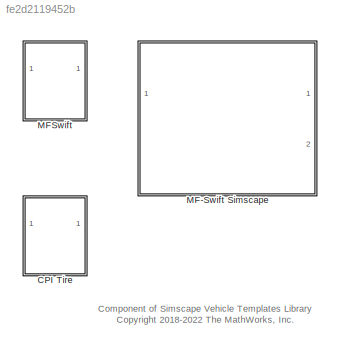
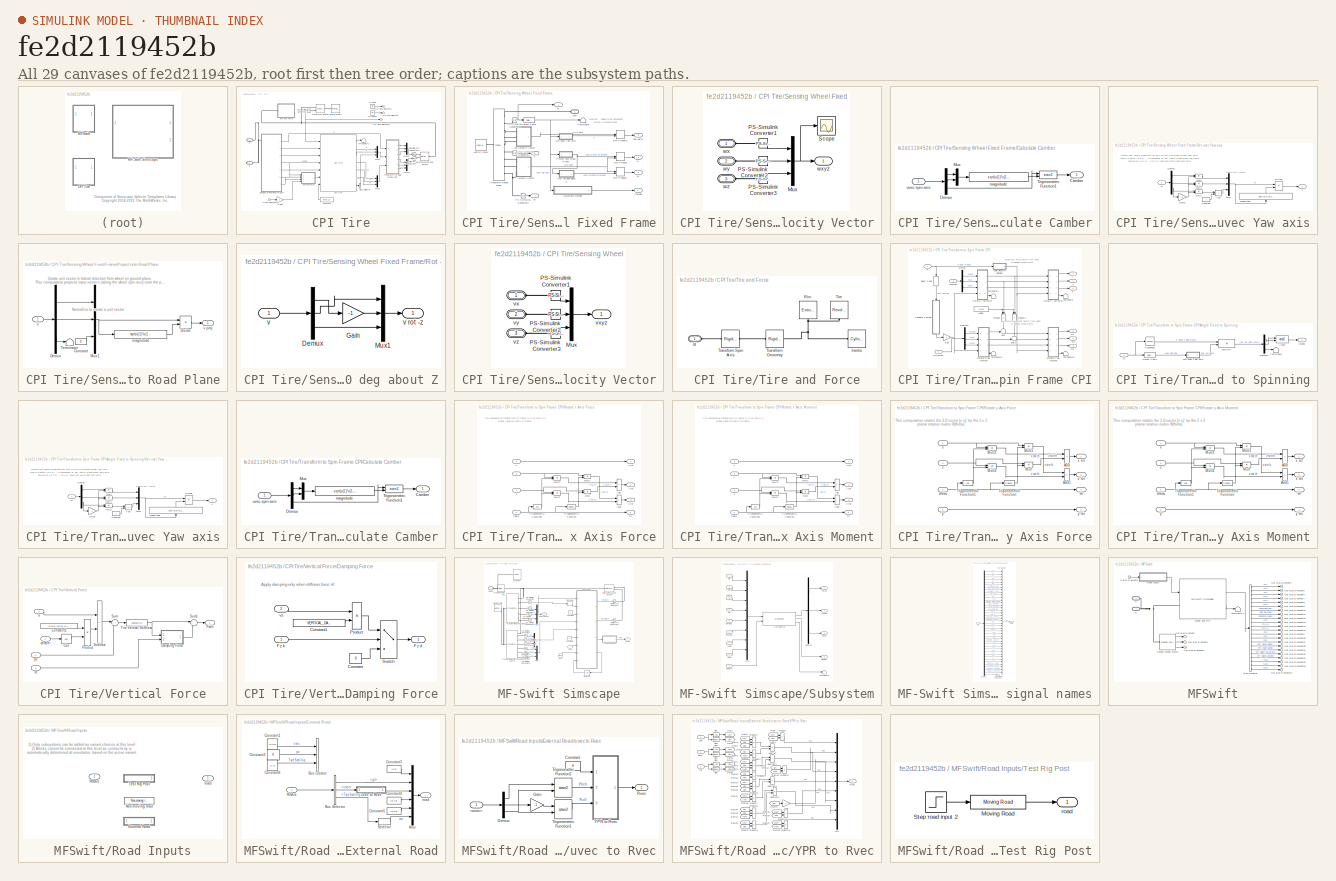
[diagram: thumbnail index - all 29 canvases of the model, root first then tree order]
MODEL slx_fe2d2119452b
KIND library
CONFIG AbsTol = auto
CONFIG EnableMultiTasking = off
CONFIG FixedStep = auto
CONFIG MaxStep = auto
CONFIG MinStep = auto
CONFIG RelTol = 1e-3
CONFIG SampleTimeConstraint = Unconstrained
CONFIG SolverName = VariableStepAuto
CONFIG StartTime = 0.0
CONFIG StopTime = 10.0
BLOCK [SubSystem] CPI Tire
  Commented = on
  Ports = [1, 1, 0, 0, 0, 1, 1]
  RequestExecContextInheritance = off
  VariantControl = CPI
BLOCK [PMIOPort] CPI Tire/B
  Side = Right
BLOCK [BusSelector] CPI Tire/Bus Selector
  OutputSignals = Fz
  Ports = [1, 1]
BLOCK [PMIOPort] CPI Tire/C
  Port = 2
  Side = Left
BLOCK [Reference] CPI Tire/CPI tyre  REF=Delft_Tyre_dtlib/Simulink/CPI tyre
  Ports = [7, 7]
  SourceBlock = Delft_Tyre_dtlib/Simulink/CPI tyre
  SourceType = CPI_tyre
  Tag = CPI tyre
BLOCK [Constant] CPI Tire/Constant
  Value = ones(1,7)
BLOCK [Reference] CPI Tire/External Force and Torque  REF=sm_lib/Forces and
Torques/External Force
and Torque
  Ports = [0, 0, 0, 0, 0, 2, 1]
  SourceBlock = sm_lib/Forces and\nTorques/External Force\nand Torque
  SourceProductBaseCode = MS
  SourceType = External Force\nand Torque
BLOCK [Gain] CPI Tire/Gain2
  Gain = 0
BLOCK [Ground] CPI Tire/Ground
BLOCK [Ground] CPI Tire/Ground2
BLOCK [Inport] CPI Tire/In Bus Element
BLOCK [Mux] CPI Tire/Mux1
  DisplayOption = bar
  Inputs = 3
  Ports = [3, 1]
BLOCK [Mux] CPI Tire/Mux10
  DisplayOption = bar
  Inputs = 3
  Ports = [3, 1]
BLOCK [Mux] CPI Tire/Mux11
  DisplayOption = bar
  Inputs = 3
  Ports = [3, 1]
BLOCK [Mux] CPI Tire/Mux2
  DisplayOption = bar
  Inputs = 3
  Ports = [3, 1]
BLOCK [Outport] CPI Tire/Out Bus Element
  VectorParamsAs1DForOutWhenUnconnected = off
BLOCK [Outport] CPI Tire/Out Bus Element1
  VectorParamsAs1DForOutWhenUnconnected = off
BLOCK [Outport] CPI Tire/Out Bus Element3
  VectorParamsAs1DForOutWhenUnconnected = off
BLOCK [Reference] CPI Tire/PS-Simulink Converter  REF=nesl_utility/PS-Simulink
Converter
  Ports = [0, 1, 0, 0, 0, 1]
  SourceBlock = nesl_utility/PS-Simulink\nConverter
  SourceProductBaseCode = SS,PW,VE
  SourceType = PS-Simulink\nConverter
BLOCK [SubSystem] CPI Tire/Sensing Wheel Fixed Frame
  Ports = [0, 7, 0, 0, 0, 1]
  RequestExecContextInheritance = off
BLOCK [SubSystem] CPI Tire/Sensing Wheel Fixed Frame/Ang Velocity Vector
  Ports = [0, 1, 0, 0, 0, 3]
  RequestExecContextInheritance = off
BLOCK [Mux] CPI Tire/Sensing Wheel Fixed Frame/Ang Velocity Vector/Mux
  DisplayOption = bar
  Inputs = 3
  Ports = [3, 1]
BLOCK [Reference] CPI Tire/Sensing Wheel Fixed Frame/Ang Velocity Vector/PS-Simulink Converter1  REF=nesl_utility/PS-Simulink
Converter
  Ports = [0, 1, 0, 0, 0, 1]
  SourceBlock = nesl_utility/PS-Simulink\nConverter
  SourceProductBaseCode = SS,PW,VE
  SourceType = PS-Simulink\nConverter
BLOCK [Reference] CPI Tire/Sensing Wheel Fixed Frame/Ang Velocity Vector/PS-Simulink Converter2  REF=nesl_utility/PS-Simulink
Converter
  Ports = [0, 1, 0, 0, 0, 1]
  SourceBlock = nesl_utility/PS-Simulink\nConverter
  SourceProductBaseCode = SS,PW,VE
  SourceType = PS-Simulink\nConverter
BLOCK [Reference] CPI Tire/Sensing Wheel Fixed Frame/Ang Velocity Vector/PS-Simulink Converter3  REF=nesl_utility/PS-Simulink
Converter
  Ports = [0, 1, 0, 0, 0, 1]
  SourceBlock = nesl_utility/PS-Simulink\nConverter
  SourceProductBaseCode = SS,PW,VE
  SourceType = PS-Simulink\nConverter
BLOCK [Scope] CPI Tire/Sensing Wheel Fixed Frame/Ang Velocity Vector/Scope
  Floating = off
  NumInputPorts = 1
  Ports = [1]
  ScopeSpecificationString = Simulink.scopes.TimeScopeBlockCfg('CurrentConfiguration', extmgr.ConfigurationSet(extmgr.Configuration('Core','General UI',true),extmgr.Configuration('Core','Source UI',true),extmgr.Configuration('Sources','WiredSimulink',true,'DataLoggingVariableName','ScopeData4'),extmgr.Configuration('Visuals','Time Domain',true,'SerializedDisplays',{struct('MinYLimReal','-5.8089','MaxYLimReal','30.87099','YLab...<+1436ch>
BLOCK [PMIOPort] CPI Tire/Sensing Wheel Fixed Frame/Ang Velocity Vector/wx
  Side = Left
BLOCK [Outport] CPI Tire/Sensing Wheel Fixed Frame/Ang Velocity Vector/wxyz
  VectorParamsAs1DForOutWhenUnconnected = off
BLOCK [PMIOPort] CPI Tire/Sensing Wheel Fixed Frame/Ang Velocity Vector/wy
  Port = 2
  Side = Left
BLOCK [PMIOPort] CPI Tire/Sensing Wheel Fixed Frame/Ang Velocity Vector/wz
  Port = 3
  Side = Left
BLOCK [SubSystem] CPI Tire/Sensing Wheel Fixed Frame/Calculate Camber
  Ports = [1, 1]
  RequestExecContextInheritance = off
BLOCK [Outport] CPI Tire/Sensing Wheel Fixed Frame/Calculate Camber/Camber
  VectorParamsAs1DForOutWhenUnconnected = off
BLOCK [Demux] CPI Tire/Sensing Wheel Fixed Frame/Calculate Camber/Demux
  Outputs = 3
  Ports = [1, 3]
BLOCK [Mux] CPI Tire/Sensing Wheel Fixed Frame/Calculate Camber/Mux
  DisplayOption = bar
  Inputs = 2
  Ports = [2, 1]
BLOCK [Trigonometry] CPI Tire/Sensing Wheel Fixed Frame/Calculate Camber/Trigonometric Function1
  Operator = atan2
  Ports = [2, 1]
BLOCK [Fcn] CPI Tire/Sensing Wheel Fixed Frame/Calculate Camber/magnitude
  Expr = sqrt(u(1)*u(1)+u(2)*u(2))
BLOCK [Inport] CPI Tire/Sensing Wheel Fixed Frame/Calculate Camber/uvec spin axis
BLOCK [Outport] CPI Tire/Sensing Wheel Fixed Frame/Camber
  Port = 4
  VectorParamsAs1DForOutWhenUnconnected = off
BLOCK [DotProduct] CPI Tire/Sensing Wheel Fixed Frame/Dot Product
  OutDataTypeStr = Inherit: Inherit via internal rule
BLOCK [DotProduct] CPI Tire/Sensing Wheel Fixed Frame/Dot Product1
  OutDataTypeStr = Inherit: Inherit via internal rule
BLOCK [DotProduct] CPI Tire/Sensing Wheel Fixed Frame/Dot Product2
  OutDataTypeStr = Inherit: Inherit via internal rule
BLOCK [SubSystem] CPI Tire/Sensing Wheel Fixed Frame/Get uvec Yaw axis
  Ports = [1, 1]
  RequestExecContextInheritance = off
BLOCK [Sum] CPI Tire/Sensing Wheel Fixed Frame/Get uvec Yaw axis/Add
  IconShape = rectangular
  Ports = [2, 1]
BLOCK [Constant] CPI Tire/Sensing Wheel Fixed Frame/Get uvec Yaw axis/Constant
BLOCK [Demux] CPI Tire/Sensing Wheel Fixed Frame/Get uvec Yaw axis/Demux
  Outputs = 3
  Ports = [1, 3]
BLOCK [Product] CPI Tire/Sensing Wheel Fixed Frame/Get uvec Yaw axis/Divide
  Inputs = */
  Ports = [2, 1]
BLOCK [Gain] CPI Tire/Sensing Wheel Fixed Frame/Get uvec Yaw axis/Gain2
  Gain = -1
BLOCK [Product] CPI Tire/Sensing Wheel Fixed Frame/Get uvec Yaw axis/Mult
  Inputs = **
  Ports = [2, 1]
BLOCK [Product] CPI Tire/Sensing Wheel Fixed Frame/Get uvec Yaw axis/Mult1
  Inputs = **
  Ports = [2, 1]
BLOCK [Product] CPI Tire/Sensing Wheel Fixed Frame/Get uvec Yaw axis/Mult2
  Inputs = **
  Ports = [2, 1]
BLOCK [Mux] CPI Tire/Sensing Wheel Fixed Frame/Get uvec Yaw axis/Mux1
  DisplayOption = bar
  Inputs = 3
  Ports = [3, 1]
BLOCK [Fcn] CPI Tire/Sensing Wheel Fixed Frame/Get uvec Yaw axis/magnitude
  Expr = sqrt(u(1)*u(1)+u(2)*u(2)+u(3)*u(3))
  NameLocation = right
BLOCK [Outport] CPI Tire/Sensing Wheel Fixed Frame/Get uvec Yaw axis/u
  VectorParamsAs1DForOutWhenUnconnected = off
BLOCK [Inport] CPI Tire/Sensing Wheel Fixed Frame/Get uvec Yaw axis/zf
BLOCK [Reference] CPI Tire/Sensing Wheel Fixed Frame/PS-Simulink Converter1  REF=nesl_utility/PS-Simulink
Converter
  Ports = [0, 1, 0, 0, 0, 1]
  SourceBlock = nesl_utility/PS-Simulink\nConverter
  SourceProductBaseCode = SS,PW,VE
  SourceType = PS-Simulink\nConverter
BLOCK [Reference] CPI Tire/Sensing Wheel Fixed Frame/PS-Simulink Converter2  REF=nesl_utility/PS-Simulink
Converter
  Ports = [0, 1, 0, 0, 0, 1]
  SourceBlock = nesl_utility/PS-Simulink\nConverter
  SourceProductBaseCode = SS,PW,VE
  SourceType = PS-Simulink\nConverter
BLOCK [Reference] CPI Tire/Sensing Wheel Fixed Frame/PS-Simulink Converter6  REF=nesl_utility/PS-Simulink
Converter
  Ports = [0, 1, 0, 0, 0, 1]
  SourceBlock = nesl_utility/PS-Simulink\nConverter
  SourceProductBaseCode = SS,PW,VE
  SourceType = PS-Simulink\nConverter
BLOCK [SubSystem] CPI Tire/Sensing Wheel Fixed Frame/Project onto Road Plane
  Ports = [1, 1]
  RequestExecContextInheritance = off
BLOCK [Constant] CPI Tire/Sensing Wheel Fixed Frame/Project onto Road Plane/Constant
  Value = 0
BLOCK [Demux] CPI Tire/Sensing Wheel Fixed Frame/Project onto Road Plane/Demux
  Outputs = 3
  Ports = [1, 3]
BLOCK [Product] CPI Tire/Sensing Wheel Fixed Frame/Project onto Road Plane/Divide
  Inputs = */
  Ports = [2, 1]
BLOCK [Mux] CPI Tire/Sensing Wheel Fixed Frame/Project onto Road Plane/Mux1
  DisplayOption = bar
  Inputs = 3
  Ports = [3, 1]
BLOCK [Terminator] CPI Tire/Sensing Wheel Fixed Frame/Project onto Road Plane/Terminator
BLOCK [Fcn] CPI Tire/Sensing Wheel Fixed Frame/Project onto Road Plane/magnitude
  Expr = sqrt(u(1)*u(1)+u(2)*u(2))
BLOCK [Inport] CPI Tire/Sensing Wheel Fixed Frame/Project onto Road Plane/v
BLOCK [Outport] CPI Tire/Sensing Wheel Fixed Frame/Project onto Road Plane/v proj
  VectorParamsAs1DForOutWhenUnconnected = off
BLOCK [Outport] CPI Tire/Sensing Wheel Fixed Frame/R
  VectorParamsAs1DForOutWhenUnconnected = off
BLOCK [SubSystem] CPI Tire/Sensing Wheel Fixed Frame/Rot -90 deg about Z
  Ports = [1, 1]
  RequestExecContextInheritance = off
BLOCK [Demux] CPI Tire/Sensing Wheel Fixed Frame/Rot -90 deg about Z/Demux
  Outputs = 3
  Ports = [1, 3]
BLOCK [Gain] CPI Tire/Sensing Wheel Fixed Frame/Rot -90 deg about Z/Gain
  Gain = -1
BLOCK [Mux] CPI Tire/Sensing Wheel Fixed Frame/Rot -90 deg about Z/Mux1
  DisplayOption = bar
  Inputs = 3
  Ports = [3, 1]
BLOCK [Inport] CPI Tire/Sensing Wheel Fixed Frame/Rot -90 deg about Z/v
BLOCK [Outport] CPI Tire/Sensing Wheel Fixed Frame/Rot -90 deg about Z/v rot -z
  VectorParamsAs1DForOutWhenUnconnected = off
BLOCK [Selector] CPI Tire/Sensing Wheel Fixed Frame/Select z axis
  IndexOptions = Index vector (dialog),Index vector (dialog)
  Indices = [1 2 3],3
  InputPortWidth = 2
  NumberOfDimensions = 2
  OutputSizes = 1,1
  Ports = [1, 1]
BLOCK [Terminator] CPI Tire/Sensing Wheel Fixed Frame/Terminator
BLOCK [Reference] CPI Tire/Sensing Wheel Fixed Frame/Transform Sensor Base  REF=sm_lib/Frames and
Transforms/Transform
Sensor
  Ports = [0, 0, 0, 0, 0, 1, 9]
  SourceBlock = sm_lib/Frames and\nTransforms/Transform\nSensor
  SourceProductBaseCode = MS
  SourceType = Transform\nSensor
BLOCK [SubSystem] CPI Tire/Sensing Wheel Fixed Frame/Velocity Vector
  Ports = [0, 1, 0, 0, 0, 3]
  RequestExecContextInheritance = off
BLOCK [Mux] CPI Tire/Sensing Wheel Fixed Frame/Velocity Vector/Mux
  DisplayOption = bar
  Inputs = 3
  Ports = [3, 1]
BLOCK [Reference] CPI Tire/Sensing Wheel Fixed Frame/Velocity Vector/PS-Simulink Converter1  REF=nesl_utility/PS-Simulink
Converter
  Ports = [0, 1, 0, 0, 0, 1]
  SourceBlock = nesl_utility/PS-Simulink\nConverter
  SourceProductBaseCode = SS,PW,VE
  SourceType = PS-Simulink\nConverter
BLOCK [Reference] CPI Tire/Sensing Wheel Fixed Frame/Velocity Vector/PS-Simulink Converter2  REF=nesl_utility/PS-Simulink
Converter
  Ports = [0, 1, 0, 0, 0, 1]
  SourceBlock = nesl_utility/PS-Simulink\nConverter
  SourceProductBaseCode = SS,PW,VE
  SourceType = PS-Simulink\nConverter
BLOCK [Reference] CPI Tire/Sensing Wheel Fixed Frame/Velocity Vector/PS-Simulink Converter3  REF=nesl_utility/PS-Simulink
Converter
  Ports = [0, 1, 0, 0, 0, 1]
  SourceBlock = nesl_utility/PS-Simulink\nConverter
  SourceProductBaseCode = SS,PW,VE
  SourceType = PS-Simulink\nConverter
BLOCK [PMIOPort] CPI Tire/Sensing Wheel Fixed Frame/Velocity Vector/vx
  Side = Left
BLOCK [Outport] CPI Tire/Sensing Wheel Fixed Frame/Velocity Vector/vxyz
  VectorParamsAs1DForOutWhenUnconnected = off
BLOCK [PMIOPort] CPI Tire/Sensing Wheel Fixed Frame/Velocity Vector/vy
  Port = 2
  Side = Left
BLOCK [PMIOPort] CPI Tire/Sensing Wheel Fixed Frame/Velocity Vector/vz
  Port = 3
  Side = Left
BLOCK [PMIOPort] CPI Tire/Sensing Wheel Fixed Frame/Whl
  NameLocation = top
  Side = Left
BLOCK [Reference] CPI Tire/Sensing Wheel Fixed Frame/World Frame  REF=sm_lib/Frames and
Transforms/World Frame
  Ports = [0, 0, 0, 0, 0, 0, 1]
  SourceBlock = sm_lib/Frames and\nTransforms/World Frame
  SourceProductBaseCode = MS
  SourceType = World Frame
BLOCK [Outport] CPI Tire/Sensing Wheel Fixed Frame/vx
  Port = 2
  VectorParamsAs1DForOutWhenUnconnected = off
BLOCK [Outport] CPI Tire/Sensing Wheel Fixed Frame/vy
  Port = 3
  VectorParamsAs1DForOutWhenUnconnected = off
BLOCK [Outport] CPI Tire/Sensing Wheel Fixed Frame/vz
  Port = 7
  VectorParamsAs1DForOutWhenUnconnected = off
BLOCK [Outport] CPI Tire/Sensing Wheel Fixed Frame/yaw deriv
  Port = 5
  VectorParamsAs1DForOutWhenUnconnected = off
BLOCK [Outport] CPI Tire/Sensing Wheel Fixed Frame/z
  Port = 6
  VectorParamsAs1DForOutWhenUnconnected = off
BLOCK [Reference] CPI Tire/Simulink-PS Converter1  REF=nesl_utility/Simulink-PS
Converter
  Ports = [1, 0, 0, 0, 0, 0, 1]
  SourceBlock = nesl_utility/Simulink-PS\nConverter
  SourceProductBaseCode = SS,PW,VE
  SourceType = Simulink-PS\nConverter
BLOCK [Reference] CPI Tire/Simulink-PS Converter2  REF=nesl_utility/Simulink-PS
Converter
  Ports = [1, 0, 0, 0, 0, 0, 1]
  SourceBlock = nesl_utility/Simulink-PS\nConverter
  SourceProductBaseCode = SS,PW,VE
  SourceType = Simulink-PS\nConverter
BLOCK [Terminator] CPI Tire/Terminator1
BLOCK [SubSystem] CPI Tire/Tire and Force
  Ports = [0, 0, 0, 0, 0, 1]
  RequestExecContextInheritance = off
BLOCK [PMIOPort] CPI Tire/Tire and Force/B
  Side = Left
BLOCK [Reference] CPI Tire/Tire and Force/Inertia  REF=sm_lib/Body Elements/Cylindrical Solid
  NameLocation = top
  Ports = [0, 0, 0, 0, 0, 0, 1]
  SourceBlock = sm_lib/Body Elements/Cylindrical Solid
  SourceProductBaseCode = MS
  SourceType = Cylindrical Solid
BLOCK [Reference] CPI Tire/Tire and Force/Rim  REF=sm_lib/Body Elements/Extruded Solid
  NameLocation = right
  Ports = [0, 0, 0, 0, 0, 0, 1]
  SourceBlock = sm_lib/Body Elements/Extruded Solid
  SourceProductBaseCode = MS
  SourceType = Extruded Solid
BLOCK [Reference] CPI Tire/Tire and Force/Tire  REF=sm_lib/Body Elements/Revolved Solid
  NameLocation = right
  Ports = [0, 0, 0, 0, 0, 0, 1]
  SourceBlock = sm_lib/Body Elements/Revolved Solid
  SourceProductBaseCode = MS
  SourceType = Revolved Solid
BLOCK [Reference] CPI Tire/Tire and Force/Transform Geometry  REF=sm_lib/Frames and
Transforms/Rigid
Transform
  NameLocation = top
  Ports = [0, 0, 0, 0, 0, 1, 1]
  SourceBlock = sm_lib/Frames and\nTransforms/Rigid\nTransform
  SourceProductBaseCode = MS
  SourceType = Rigid\nTransform
BLOCK [Reference] CPI Tire/Tire and Force/Transform Spin Axis  REF=sm_lib/Frames and
Transforms/Rigid
Transform
  NameLocation = top
  Ports = [0, 0, 0, 0, 0, 1, 1]
  SourceBlock = sm_lib/Frames and\nTransforms/Rigid\nTransform
  SourceProductBaseCode = MS
  SourceType = Rigid\nTransform
BLOCK [Reference] CPI Tire/Transform Sensor  REF=sm_lib/Frames and
Transforms/Transform
Sensor
  Ports = [0, 0, 0, 0, 0, 1, 2]
  SourceBlock = sm_lib/Frames and\nTransforms/Transform\nSensor
  SourceProductBaseCode = MS
  SourceType = Transform\nSensor
BLOCK [SubSystem] CPI Tire/Transform to Spin Frame CPI
  Ports = [3, 6]
  RequestExecContextInheritance = off
BLOCK [SubSystem] CPI Tire/Transform to Spin Frame CPI/Angle Fixed to Spinning
  NameLocation = top
  Ports = [1, 1]
  RequestExecContextInheritance = off
BLOCK [Trigonometry] CPI Tire/Transform to Spin Frame CPI/Angle Fixed to Spinning/Atan2
  Operator = atan2
  Ports = [2, 1]
BLOCK [Demux] CPI Tire/Transform to Spin Frame CPI/Angle Fixed to Spinning/Demux1
  Outputs = 3
  Ports = [1, 3]
BLOCK [SubSystem] CPI Tire/Transform to Spin Frame CPI/Angle Fixed to Spinning/Get uvec Yaw axis
  Ports = [1, 1]
  RequestExecContextInheritance = off
BLOCK [Sum] CPI Tire/Transform to Spin Frame CPI/Angle Fixed to Spinning/Get uvec Yaw axis/Add
  IconShape = rectangular
  Ports = [2, 1]
BLOCK [Constant] CPI Tire/Transform to Spin Frame CPI/Angle Fixed to Spinning/Get uvec Yaw axis/Constant
BLOCK [Demux] CPI Tire/Transform to Spin Frame CPI/Angle Fixed to Spinning/Get uvec Yaw axis/Demux
  Outputs = 3
  Ports = [1, 3]
BLOCK [Product] CPI Tire/Transform to Spin Frame CPI/Angle Fixed to Spinning/Get uvec Yaw axis/Divide
  Inputs = */
  Ports = [2, 1]
BLOCK [Gain] CPI Tire/Transform to Spin Frame CPI/Angle Fixed to Spinning/Get uvec Yaw axis/Gain2
  Gain = -1
BLOCK [Product] CPI Tire/Transform to Spin Frame CPI/Angle Fixed to Spinning/Get uvec Yaw axis/Mult
  Inputs = **
  Ports = [2, 1]
BLOCK [Product] CPI Tire/Transform to Spin Frame CPI/Angle Fixed to Spinning/Get uvec Yaw axis/Mult1
  Inputs = **
  Ports = [2, 1]
BLOCK [Product] CPI Tire/Transform to Spin Frame CPI/Angle Fixed to Spinning/Get uvec Yaw axis/Mult2
  Inputs = **
  Ports = [2, 1]
BLOCK [Mux] CPI Tire/Transform to Spin Frame CPI/Angle Fixed to Spinning/Get uvec Yaw axis/Mux1
  DisplayOption = bar
  Inputs = 3
  Ports = [3, 1]
BLOCK [Fcn] CPI Tire/Transform to Spin Frame CPI/Angle Fixed to Spinning/Get uvec Yaw axis/magnitude
  Expr = sqrt(u(1)*u(1)+u(2)*u(2)+u(3)*u(3))
  NameLocation = right
BLOCK [Outport] CPI Tire/Transform to Spin Frame CPI/Angle Fixed to Spinning/Get uvec Yaw axis/u
  VectorParamsAs1DForOutWhenUnconnected = off
BLOCK [Inport] CPI Tire/Transform to Spin Frame CPI/Angle Fixed to Spinning/Get uvec Yaw axis/zf
BLOCK [Product] CPI Tire/Transform to Spin Frame CPI/Angle Fixed to Spinning/Multiply
  Inputs = **
  Multiplication = Matrix(*)
  Ports = [2, 1]
BLOCK [Inport] CPI Tire/Transform to Spin Frame CPI/Angle Fixed to Spinning/R
BLOCK [Selector] CPI Tire/Transform to Spin Frame CPI/Angle Fixed to Spinning/Select z axis
  IndexOptions = Index vector (dialog),Index vector (dialog)
  Indices = [1 2 3],3
  InputPortWidth = 2
  NumberOfDimensions = 2
  OutputSizes = 1,1
  Ports = [1, 1]
BLOCK [Terminator] CPI Tire/Transform to Spin Frame CPI/Angle Fixed to Spinning/Terminator
BLOCK [Math] CPI Tire/Transform to Spin Frame CPI/Angle Fixed to Spinning/Transpose
  Operator = transpose
  Ports = [1, 1]
  SignedPower = on
BLOCK [Outport] CPI Tire/Transform to Spin Frame CPI/Angle Fixed to Spinning/rotang
  VectorParamsAs1DForOutWhenUnconnected = off
BLOCK [SubSystem] CPI Tire/Transform to Spin Frame CPI/Calculate Camber
  NameLocation = left
  Ports = [1, 1]
  RequestExecContextInheritance = off
BLOCK [Outport] CPI Tire/Transform to Spin Frame CPI/Calculate Camber/Camber
  VectorParamsAs1DForOutWhenUnconnected = off
BLOCK [Demux] CPI Tire/Transform to Spin Frame CPI/Calculate Camber/Demux
  Outputs = 3
  Ports = [1, 3]
BLOCK [Mux] CPI Tire/Transform to Spin Frame CPI/Calculate Camber/Mux
  DisplayOption = bar
  Inputs = 2
  Ports = [2, 1]
BLOCK [Trigonometry] CPI Tire/Transform to Spin Frame CPI/Calculate Camber/Trigonometric Function1
  Operator = atan2
  Ports = [2, 1]
BLOCK [Fcn] CPI Tire/Transform to Spin Frame CPI/Calculate Camber/magnitude
  Expr = sqrt(u(1)*u(1)+u(2)*u(2))
BLOCK [Inport] CPI Tire/Transform to Spin Frame CPI/Calculate Camber/uvec spin axis
BLOCK [Demux] CPI Tire/Transform to Spin Frame CPI/Demux
  Outputs = 3
  Ports = [1, 3]
BLOCK [Demux] CPI Tire/Transform to Spin Frame CPI/Demux1
  Outputs = 3
  Ports = [1, 3]
BLOCK [Inport] CPI Tire/Transform to Spin Frame CPI/Fcontact
  Port = 2
BLOCK [Gain] CPI Tire/Transform to Spin Frame CPI/Gain
  Gain = -1
BLOCK [Inport] CPI Tire/Transform to Spin Frame CPI/MContact
  Port = 3
BLOCK [Outport] CPI Tire/Transform to Spin Frame CPI/Mx
  Port = 4
  VectorParamsAs1DForOutWhenUnconnected = off
BLOCK [Outport] CPI Tire/Transform to Spin Frame CPI/My
  Port = 5
  VectorParamsAs1DForOutWhenUnconnected = off
BLOCK [Outport] CPI Tire/Transform to Spin Frame CPI/Mz
  Port = 6
  VectorParamsAs1DForOutWhenUnconnected = off
BLOCK [Product] CPI Tire/Transform to Spin Frame CPI/Product
  NameLocation = left
  Ports = [2, 1]
BLOCK [Product] CPI Tire/Transform to Spin Frame CPI/Product1
  NameLocation = left
  Ports = [2, 1]
BLOCK [Inport] CPI Tire/Transform to Spin Frame CPI/R
BLOCK [SubSystem] CPI Tire/Transform to Spin Frame CPI/Rotate x Axis Force
  Ports = [4, 4]
  RequestExecContextInheritance = off
BLOCK [Sum] CPI Tire/Transform to Spin Frame CPI/Rotate x Axis Force/Add
  IconShape = rectangular
  Inputs = +-
  Ports = [2, 1]
BLOCK [Sum] CPI Tire/Transform to Spin Frame CPI/Rotate x Axis Force/Add1
  IconShape = rectangular
  Ports = [2, 1]
BLOCK [Product] CPI Tire/Transform to Spin Frame CPI/Rotate x Axis Force/Mult
  Inputs = **
  Ports = [2, 1]
BLOCK [Product] CPI Tire/Transform to Spin Frame CPI/Rotate x Axis Force/Mult1
  Inputs = **
  Ports = [2, 1]
BLOCK [Product] CPI Tire/Transform to Spin Frame CPI/Rotate x Axis Force/Mult2
  Inputs = **
  Ports = [2, 1]
BLOCK [Product] CPI Tire/Transform to Spin Frame CPI/Rotate x Axis Force/Mult3
  Inputs = **
  Ports = [2, 1]
BLOCK [Trigonometry] CPI Tire/Transform to Spin Frame CPI/Rotate x Axis Force/Trigonometric Function
  Ports = [1, 1]
BLOCK [Trigonometry] CPI Tire/Transform to Spin Frame CPI/Rotate x Axis Force/Trigonometric Function1
  Operator = cos
  Ports = [1, 1]
BLOCK [Outport] CPI Tire/Transform to Spin Frame CPI/Rotate x Axis Force/th
  Port = 4
  VectorParamsAs1DForOutWhenUnconnected = off
BLOCK [Inport] CPI Tire/Transform to Spin Frame CPI/Rotate x Axis Force/theta
  Port = 4
BLOCK [Inport] CPI Tire/Transform to Spin Frame CPI/Rotate x Axis Force/x
BLOCK [Outport] CPI Tire/Transform to Spin Frame CPI/Rotate x Axis Force/x rot
  VectorParamsAs1DForOutWhenUnconnected = off
BLOCK [Inport] CPI Tire/Transform to Spin Frame CPI/Rotate x Axis Force/y
  Port = 2
BLOCK [Outport] CPI Tire/Transform to Spin Frame CPI/Rotate x Axis Force/y rot
  Port = 2
  VectorParamsAs1DForOutWhenUnconnected = off
BLOCK [Inport] CPI Tire/Transform to Spin Frame CPI/Rotate x Axis Force/z
  Port = 3
BLOCK [Outport] CPI Tire/Transform to Spin Frame CPI/Rotate x Axis Force/z rot
  Port = 3
  VectorParamsAs1DForOutWhenUnconnected = off
BLOCK [SubSystem] CPI Tire/Transform to Spin Frame CPI/Rotate x Axis Moment
  Ports = [4, 4]
  RequestExecContextInheritance = off
BLOCK [Sum] CPI Tire/Transform to Spin Frame CPI/Rotate x Axis Moment/Add
  IconShape = rectangular
  Inputs = +-
  Ports = [2, 1]
BLOCK [Sum] CPI Tire/Transform to Spin Frame CPI/Rotate x Axis Moment/Add1
  IconShape = rectangular
  Ports = [2, 1]
BLOCK [Product] CPI Tire/Transform to Spin Frame CPI/Rotate x Axis Moment/Mult
  Inputs = **
  Ports = [2, 1]
BLOCK [Product] CPI Tire/Transform to Spin Frame CPI/Rotate x Axis Moment/Mult1
  Inputs = **
  Ports = [2, 1]
BLOCK [Product] CPI Tire/Transform to Spin Frame CPI/Rotate x Axis Moment/Mult2
  Inputs = **
  Ports = [2, 1]
BLOCK [Product] CPI Tire/Transform to Spin Frame CPI/Rotate x Axis Moment/Mult3
  Inputs = **
  Ports = [2, 1]
BLOCK [Trigonometry] CPI Tire/Transform to Spin Frame CPI/Rotate x Axis Moment/Trigonometric Function
  Ports = [1, 1]
BLOCK [Trigonometry] CPI Tire/Transform to Spin Frame CPI/Rotate x Axis Moment/Trigonometric Function1
  Operator = cos
  Ports = [1, 1]
BLOCK [Outport] CPI Tire/Transform to Spin Frame CPI/Rotate x Axis Moment/th
  Port = 4
  VectorParamsAs1DForOutWhenUnconnected = off
BLOCK [Inport] CPI Tire/Transform to Spin Frame CPI/Rotate x Axis Moment/theta
  Port = 4
BLOCK [Inport] CPI Tire/Transform to Spin Frame CPI/Rotate x Axis Moment/x
BLOCK [Outport] CPI Tire/Transform to Spin Frame CPI/Rotate x Axis Moment/x rot
  VectorParamsAs1DForOutWhenUnconnected = off
BLOCK [Inport] CPI Tire/Transform to Spin Frame CPI/Rotate x Axis Moment/y
  Port = 2
BLOCK [Outport] CPI Tire/Transform to Spin Frame CPI/Rotate x Axis Moment/y rot
  Port = 2
  VectorParamsAs1DForOutWhenUnconnected = off
BLOCK [Inport] CPI Tire/Transform to Spin Frame CPI/Rotate x Axis Moment/z
  Port = 3
BLOCK [Outport] CPI Tire/Transform to Spin Frame CPI/Rotate x Axis Moment/z rot
  Port = 3
  VectorParamsAs1DForOutWhenUnconnected = off
BLOCK [SubSystem] CPI Tire/Transform to Spin Frame CPI/Rotate y Axis Force
  Ports = [4, 4]
  RequestExecContextInheritance = off
BLOCK [Sum] CPI Tire/Transform to Spin Frame CPI/Rotate y Axis Force/Add
  IconShape = rectangular
  Ports = [2, 1]
BLOCK [Sum] CPI Tire/Transform to Spin Frame CPI/Rotate y Axis Force/Add1
  IconShape = rectangular
  Inputs = -+
  Ports = [2, 1]
BLOCK [Product] CPI Tire/Transform to Spin Frame CPI/Rotate y Axis Force/Mult
  Inputs = **
  Ports = [2, 1]
BLOCK [Product] CPI Tire/Transform to Spin Frame CPI/Rotate y Axis Force/Mult1
  Inputs = **
  Ports = [2, 1]
BLOCK [Product] CPI Tire/Transform to Spin Frame CPI/Rotate y Axis Force/Mult2
  Inputs = **
  Ports = [2, 1]
BLOCK [Product] CPI Tire/Transform to Spin Frame CPI/Rotate y Axis Force/Mult3
  Inputs = **
  Ports = [2, 1]
BLOCK [Trigonometry] CPI Tire/Transform to Spin Frame CPI/Rotate y Axis Force/Trigonometric Function
  Ports = [1, 1]
BLOCK [Trigonometry] CPI Tire/Transform to Spin Frame CPI/Rotate y Axis Force/Trigonometric Function1
  Operator = cos
  Ports = [1, 1]
BLOCK [Outport] CPI Tire/Transform to Spin Frame CPI/Rotate y Axis Force/th
  Port = 4
  VectorParamsAs1DForOutWhenUnconnected = off
BLOCK [Inport] CPI Tire/Transform to Spin Frame CPI/Rotate y Axis Force/theta
  Port = 4
BLOCK [Inport] CPI Tire/Transform to Spin Frame CPI/Rotate y Axis Force/x
BLOCK [Outport] CPI Tire/Transform to Spin Frame CPI/Rotate y Axis Force/x rot
  VectorParamsAs1DForOutWhenUnconnected = off
BLOCK [Inport] CPI Tire/Transform to Spin Frame CPI/Rotate y Axis Force/y
  Port = 2
BLOCK [Outport] CPI Tire/Transform to Spin Frame CPI/Rotate y Axis Force/y rot
  Port = 2
  VectorParamsAs1DForOutWhenUnconnected = off
BLOCK [Inport] CPI Tire/Transform to Spin Frame CPI/Rotate y Axis Force/z
  Port = 3
BLOCK [Outport] CPI Tire/Transform to Spin Frame CPI/Rotate y Axis Force/z rot
  Port = 3
  VectorParamsAs1DForOutWhenUnconnected = off
BLOCK [SubSystem] CPI Tire/Transform to Spin Frame CPI/Rotate y Axis Moment
  Ports = [4, 4]
  RequestExecContextInheritance = off
BLOCK [Sum] CPI Tire/Transform to Spin Frame CPI/Rotate y Axis Moment/Add
  IconShape = rectangular
  Ports = [2, 1]
BLOCK [Sum] CPI Tire/Transform to Spin Frame CPI/Rotate y Axis Moment/Add1
  IconShape = rectangular
  Inputs = -+
  Ports = [2, 1]
BLOCK [Product] CPI Tire/Transform to Spin Frame CPI/Rotate y Axis Moment/Mult
  Inputs = **
  Ports = [2, 1]
BLOCK [Product] CPI Tire/Transform to Spin Frame CPI/Rotate y Axis Moment/Mult1
  Inputs = **
  Ports = [2, 1]
BLOCK [Product] CPI Tire/Transform to Spin Frame CPI/Rotate y Axis Moment/Mult2
  Inputs = **
  Ports = [2, 1]
BLOCK [Product] CPI Tire/Transform to Spin Frame CPI/Rotate y Axis Moment/Mult3
  Inputs = **
  Ports = [2, 1]
BLOCK [Trigonometry] CPI Tire/Transform to Spin Frame CPI/Rotate y Axis Moment/Trigonometric Function
  Ports = [1, 1]
BLOCK [Trigonometry] CPI Tire/Transform to Spin Frame CPI/Rotate y Axis Moment/Trigonometric Function1
  Operator = cos
  Ports = [1, 1]
BLOCK [Outport] CPI Tire/Transform to Spin Frame CPI/Rotate y Axis Moment/th
  Port = 4
  VectorParamsAs1DForOutWhenUnconnected = off
BLOCK [Inport] CPI Tire/Transform to Spin Frame CPI/Rotate y Axis Moment/theta
  Port = 4
BLOCK [Inport] CPI Tire/Transform to Spin Frame CPI/Rotate y Axis Moment/x
BLOCK [Outport] CPI Tire/Transform to Spin Frame CPI/Rotate y Axis Moment/x rot
  VectorParamsAs1DForOutWhenUnconnected = off
BLOCK [Inport] CPI Tire/Transform to Spin Frame CPI/Rotate y Axis Moment/y
  Port = 2
BLOCK [Outport] CPI Tire/Transform to Spin Frame CPI/Rotate y Axis Moment/y rot
  Port = 2
  VectorParamsAs1DForOutWhenUnconnected = off
BLOCK [Inport] CPI Tire/Transform to Spin Frame CPI/Rotate y Axis Moment/z
  Port = 3
BLOCK [Outport] CPI Tire/Transform to Spin Frame CPI/Rotate y Axis Moment/z rot
  Port = 3
  VectorParamsAs1DForOutWhenUnconnected = off
BLOCK [Selector] CPI Tire/Transform to Spin Frame CPI/Select z axis
  IndexOptions = Index vector (dialog),Index vector (dialog)
  Indices = [1 2 3],3
  InputPortWidth = 2
  NameLocation = left
  NumberOfDimensions = 2
  OutputSizes = 1,1
  Ports = [1, 1]
BLOCK [Sum] CPI Tire/Transform to Spin Frame CPI/Sum
  Inputs = ++|
  Ports = [2, 1]
BLOCK [Sum] CPI Tire/Transform to Spin Frame CPI/Sum2
  Inputs = -+|
  Ports = [2, 1]
BLOCK [Terminator] CPI Tire/Transform to Spin Frame CPI/Terminator
BLOCK [Terminator] CPI Tire/Transform to Spin Frame CPI/Terminator1
BLOCK [Terminator] CPI Tire/Transform to Spin Frame CPI/Terminator2
BLOCK [Terminator] CPI Tire/Transform to Spin Frame CPI/Terminator3
BLOCK [Constant] CPI Tire/Transform to Spin Frame CPI/radius
  Value = 0.4225
BLOCK [Outport] CPI Tire/Transform to Spin Frame CPI/x
  VectorParamsAs1DForOutWhenUnconnected = off
BLOCK [Outport] CPI Tire/Transform to Spin Frame CPI/y
  Port = 2
  VectorParamsAs1DForOutWhenUnconnected = off
BLOCK [Outport] CPI Tire/Transform to Spin Frame CPI/z
  Port = 3
  VectorParamsAs1DForOutWhenUnconnected = off
BLOCK [SubSystem] CPI Tire/Vertical Force
  Ports = [4, 1]
  RequestExecContextInheritance = off
BLOCK [Constant] CPI Tire/Vertical Force/Constant1
  Value = UNLOADED_RADIUS
BLOCK [Trigonometry] CPI Tire/Vertical Force/Cos
  Operator = cos
  Ports = [1, 1]
BLOCK [SubSystem] CPI Tire/Vertical Force/Damping Force
  Ports = [2, 1]
  RequestExecContextInheritance = off
BLOCK [Constant] CPI Tire/Vertical Force/Damping Force/Constant
  Value = 0
BLOCK [Constant] CPI Tire/Vertical Force/Damping Force/Constant1
  Value = VERTICAL_DAMPING
BLOCK [Outport] CPI Tire/Vertical Force/Damping Force/Fz d
  VectorParamsAs1DForOutWhenUnconnected = off
BLOCK [Inport] CPI Tire/Vertical Force/Damping Force/Fz k
BLOCK [Product] CPI Tire/Vertical Force/Damping Force/Product
  Ports = [2, 1]
BLOCK [Switch] CPI Tire/Vertical Force/Damping Force/Switch
  Criteria = u2 > Threshold
  InputSameDT = off
  SaturateOnIntegerOverflow = off
  ZeroCross = off
BLOCK [Inport] CPI Tire/Vertical Force/Damping Force/vz
  Port = 2
BLOCK [Outport] CPI Tire/Vertical Force/Fvert
  VectorParamsAs1DForOutWhenUnconnected = off
BLOCK [Product] CPI Tire/Vertical Force/Product
  Ports = [2, 1]
BLOCK [Sum] CPI Tire/Vertical Force/Subtract
  IconShape = rectangular
  Inputs = +-
  Ports = [2, 1]
BLOCK [Sum] CPI Tire/Vertical Force/Sum
  Inputs = |+-
  Ports = [2, 1]
BLOCK [Sum] CPI Tire/Vertical Force/Sum1
  Inputs = |+-
  Ports = [2, 1]
BLOCK [Lookup_n-D] CPI Tire/Vertical Force/Tire Vertical Stiffness
  BreakpointsForDimension1 = [-1 0 0.1]
  InputPortMap = u0
  InternalRulePriority = Speed
  NumberOfTableDimensions = 1
  Ports = [1, 1]
  RndMeth = Simplest
  Table = [VERTICAL_STIFFNESS 0 0]
BLOCK [Inport] CPI Tire/Vertical Force/camber
BLOCK [Inport] CPI Tire/Vertical Force/gz
  Port = 4
BLOCK [Inport] CPI Tire/Vertical Force/h
  Port = 2
BLOCK [Inport] CPI Tire/Vertical Force/vz
  Port = 3
BLOCK [Reference] CPI Tire/World Frame  REF=sm_lib/Frames and
Transforms/World Frame
  NameLocation = top
  Ports = [0, 0, 0, 0, 0, 0, 1]
  SourceBlock = sm_lib/Frames and\nTransforms/World Frame
  SourceProductBaseCode = MS
  SourceType = World Frame
BLOCK [SubSystem] MF-Swift Simscape
  Ports = [1, 2, 0, 0, 0, 1]
  RequestExecContextInheritance = off
  Tag = STI tyre
BLOCK [Clock] MF-Swift Simscape/Clock
BLOCK [Constant] MF-Swift Simscape/Constant1
  Value = 0
BLOCK [Constant] MF-Swift Simscape/Constant2
  Value = 0
BLOCK [Reference] MF-Swift Simscape/External Force and Torque  REF=sm_lib/Forces and
Torques/External Force
and Torque
  NameLocation = top
  Ports = [0, 0, 0, 0, 0, 2, 1]
  SourceBlock = sm_lib/Forces and\nTorques/External Force\nand Torque
  SourceProductBaseCode = MS
  SourceType = External Force\nand Torque
BLOCK [Integrator] MF-Swift Simscape/Integrator
  Ports = [1, 1]
BLOCK [Mux] MF-Swift Simscape/Mux
  DisplayOption = bar
  Inputs = 3
  Ports = [3, 1]
BLOCK [Mux] MF-Swift Simscape/Mux1
  DisplayOption = bar
  Inputs = 3
  Ports = [3, 1]
BLOCK [Mux] MF-Swift Simscape/Mux2
  DisplayOption = bar
  Inputs = 3
  Ports = [3, 1]
BLOCK [Reference] MF-Swift Simscape/PS-Simulink Converter  REF=nesl_utility/PS-Simulink
Converter
  Ports = [0, 1, 0, 0, 0, 1]
  SourceBlock = nesl_utility/PS-Simulink\nConverter
  SourceProductBaseCode = SS,PW,VE
  SourceType = PS-Simulink\nConverter
BLOCK [Reference] MF-Swift Simscape/PS-Simulink Converter1  REF=nesl_utility/PS-Simulink
Converter
  Ports = [0, 1, 0, 0, 0, 1]
  SourceBlock = nesl_utility/PS-Simulink\nConverter
  SourceProductBaseCode = SS,PW,VE
  SourceType = PS-Simulink\nConverter
BLOCK [Reference] MF-Swift Simscape/PS-Simulink Converter2  REF=nesl_utility/PS-Simulink
Converter
  Ports = [0, 1, 0, 0, 0, 1]
  SourceBlock = nesl_utility/PS-Simulink\nConverter
  SourceProductBaseCode = SS,PW,VE
  SourceType = PS-Simulink\nConverter
BLOCK [Reference] MF-Swift Simscape/PS-Simulink Converter3  REF=nesl_utility/PS-Simulink
Converter
  Ports = [0, 1, 0, 0, 0, 1]
  SourceBlock = nesl_utility/PS-Simulink\nConverter
  SourceProductBaseCode = SS,PW,VE
  SourceType = PS-Simulink\nConverter
BLOCK [Reference] MF-Swift Simscape/PS-Simulink Converter4  REF=nesl_utility/PS-Simulink
Converter
  Ports = [0, 1, 0, 0, 0, 1]
  SourceBlock = nesl_utility/PS-Simulink\nConverter
  SourceProductBaseCode = SS,PW,VE
  SourceType = PS-Simulink\nConverter
BLOCK [Reference] MF-Swift Simscape/PS-Simulink Converter5  REF=nesl_utility/PS-Simulink
Converter
  Ports = [0, 1, 0, 0, 0, 1]
  SourceBlock = nesl_utility/PS-Simulink\nConverter
  SourceProductBaseCode = SS,PW,VE
  SourceType = PS-Simulink\nConverter
BLOCK [Reference] MF-Swift Simscape/PS-Simulink Converter6  REF=nesl_utility/PS-Simulink
Converter
  Ports = [0, 1, 0, 0, 0, 1]
  SourceBlock = nesl_utility/PS-Simulink\nConverter
  SourceProductBaseCode = SS,PW,VE
  SourceType = PS-Simulink\nConverter
BLOCK [Reference] MF-Swift Simscape/PS-Simulink Converter7  REF=nesl_utility/PS-Simulink
Converter
  Ports = [0, 1, 0, 0, 0, 1]
  SourceBlock = nesl_utility/PS-Simulink\nConverter
  SourceProductBaseCode = SS,PW,VE
  SourceType = PS-Simulink\nConverter
BLOCK [Reference] MF-Swift Simscape/PS-Simulink Converter8  REF=nesl_utility/PS-Simulink
Converter
  Ports = [0, 1, 0, 0, 0, 1]
  SourceBlock = nesl_utility/PS-Simulink\nConverter
  SourceProductBaseCode = SS,PW,VE
  SourceType = PS-Simulink\nConverter
BLOCK [Reference] MF-Swift Simscape/PS-Simulink Converter9  REF=nesl_utility/PS-Simulink
Converter
  Ports = [0, 1, 0, 0, 0, 1]
  SourceBlock = nesl_utility/PS-Simulink\nConverter
  SourceProductBaseCode = SS,PW,VE
  SourceType = PS-Simulink\nConverter
BLOCK [Reshape] MF-Swift Simscape/Reshape
  NameLocation = top
  Ports = [1, 1]
BLOCK [Reference] MF-Swift Simscape/Simulink-PS Converter  REF=nesl_utility/Simulink-PS
Converter
  Ports = [1, 0, 0, 0, 0, 0, 1]
  SourceBlock = nesl_utility/Simulink-PS\nConverter
  SourceProductBaseCode = SS,PW,VE
  SourceType = Simulink-PS\nConverter
BLOCK [Reference] MF-Swift Simscape/Simulink-PS Converter1  REF=nesl_utility/Simulink-PS
Converter
  Ports = [1, 0, 0, 0, 0, 0, 1]
  SourceBlock = nesl_utility/Simulink-PS\nConverter
  SourceProductBaseCode = SS,PW,VE
  SourceType = Simulink-PS\nConverter
BLOCK [SubSystem] MF-Swift Simscape/Subsystem
  Ports = [9, 4]
  RequestExecContextInheritance = off
BLOCK [Demux] MF-Swift Simscape/Subsystem/Demux
  Outputs = [3 3 60]
  Ports = [1, 3]
BLOCK [Mux] MF-Swift Simscape/Subsystem/Mux
  DisplayOption = bar
  Inputs = [3 9 1 3 3 1 20 1]
  Ports = [8, 1]
BLOCK [Terminator] MF-Swift Simscape/Subsystem/Terminator
BLOCK [Inport] MF-Swift Simscape/Subsystem/angtwc
  Port = 3
BLOCK [Outport] MF-Swift Simscape/Subsystem/deqder
  Port = 4
BLOCK [Inport] MF-Swift Simscape/Subsystem/deqvar
  Port = 9
BLOCK [Inport] MF-Swift Simscape/Subsystem/dis
BLOCK [Outport] MF-Swift Simscape/Subsystem/force
BLOCK [Inport] MF-Swift Simscape/Subsystem/omega
  Port = 5
BLOCK [Inport] MF-Swift Simscape/Subsystem/omegar
  Port = 6
BLOCK [Inport] MF-Swift Simscape/Subsystem/road
  Port = 7
BLOCK [S-Function] MF-Swift Simscape/Subsystem/s_mfswift_io
  EnableBusSupport = off
  FunctionName = s_mfswift_io
  Parameters = SParameter1, SParameter2, SParameter3, SParameter4, SParameter5,SParameter6,SParameter7
  Ports = [2, 3]
  SFcnIsStateOwnerBlock = off
  SFunctionDeploymentMode = off
BLOCK [Inport] MF-Swift Simscape/Subsystem/time
  Port = 8
BLOCK [Outport] MF-Swift Simscape/Subsystem/torque
  Port = 2
BLOCK [Inport] MF-Swift Simscape/Subsystem/tramat
  Port = 2
BLOCK [Outport] MF-Swift Simscape/Subsystem/varinf
  Port = 3
BLOCK [Inport] MF-Swift Simscape/Subsystem/vel
  Port = 4
BLOCK [Reference] MF-Swift Simscape/Tire Body  REF=TireBody_Models/Tire Body
  AttributesFormatString = %<LabelModeActiveChoice>
  Ports = [0, 0, 0, 0, 0, 1]
  SourceBlock = TireBody_Models/Tire Body
  SourceType = Variants for Tire Body
BLOCK [Reference] MF-Swift Simscape/Transform Sensor-LocalBodyCS  REF=sm_lib/Frames and
Transforms/Transform
Sensor
  Ports = [0, 0, 0, 0, 0, 1, 7]
  SourceBlock = sm_lib/Frames and\nTransforms/Transform\nSensor
  SourceProductBaseCode = MS
  SourceType = Transform\nSensor
BLOCK [Reference] MF-Swift Simscape/Transform Sensor-WorldCS  REF=sm_lib/Frames and
Transforms/Transform
Sensor
  Ports = [0, 0, 0, 0, 0, 1, 5]
  SourceBlock = sm_lib/Frames and\nTransforms/Transform\nSensor
  SourceProductBaseCode = MS
  SourceType = Transform\nSensor
BLOCK [Reference] MF-Swift Simscape/Transform Spin Axis  REF=sm_lib/Frames and
Transforms/Rigid
Transform
  Ports = [0, 0, 0, 0, 0, 1, 1]
  SourceBlock = sm_lib/Frames and\nTransforms/Rigid\nTransform
  SourceProductBaseCode = MS
  SourceType = Rigid\nTransform
BLOCK [Reference] MF-Swift Simscape/World Frame  REF=sm_lib/Frames and
Transforms/World Frame
  NameLocation = top
  Ports = [0, 0, 0, 0, 0, 0, 1]
  SourceBlock = sm_lib/Frames and\nTransforms/World Frame
  SourceProductBaseCode = MS
  SourceType = World Frame
BLOCK [SubSystem] MF-Swift Simscape/add signal names
  Ports = [1, 1]
  RequestExecContextInheritance = off
BLOCK [Terminator] MF-Swift Simscape/add signal names/Added for future extension
BLOCK [BusCreator] MF-Swift Simscape/add signal names/Bus Creator
  DisplayOption = bar
  InheritFromInputs = on
  Inputs = 40
  Ports = [40, 1]
BLOCK [Demux] MF-Swift Simscape/add signal names/Demux1
  DisplayOption = none
  Outputs = [ones(1,40) -1]
  Ports = [1, 41]
BLOCK [Inport] MF-Swift Simscape/add signal names/In1
BLOCK [Outport] MF-Swift Simscape/add signal names/Out1
BLOCK [Outport] MF-Swift Simscape/body sensor
  Port = 2
BLOCK [Inport] MF-Swift Simscape/road
BLOCK [Outport] MF-Swift Simscape/varinf
BLOCK [PMIOPort] MF-Swift Simscape/wheel
  Side = Left
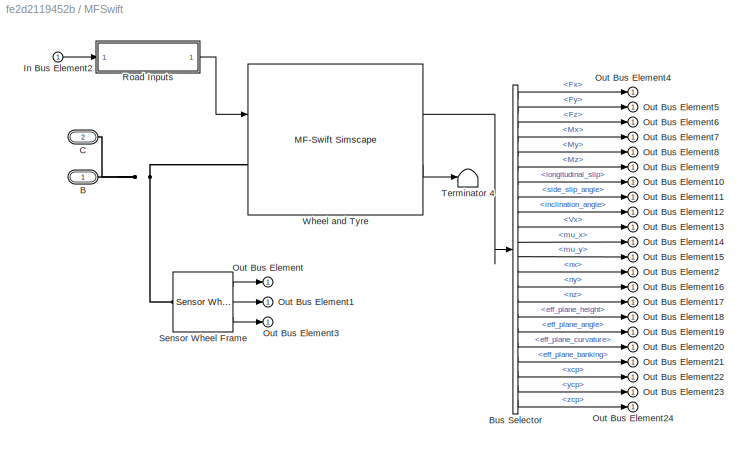
BLOCK [SubSystem] MFSwift
  Ports = [1, 1, 0, 0, 0, 1, 1]
  RequestExecContextInheritance = off
  VariantControl = Delft
BLOCK [PMIOPort] MFSwift/B
  Side = Right
BLOCK [BusSelector] MFSwift/Bus Selector
  OutputSignals = Fx,Fy,Fz,Mx,My,Mz,longitudinal_slip,side_slip_angle,inclination_angle,Vx,mu_x,mu_y,nx,ny,nz,eff_plane_height,eff_plane_angle,eff_plane_curvature,eff_plane_banking,xcp,ycp,zcp
  Ports = [1, 22]
BLOCK [PMIOPort] MFSwift/C
  Port = 2
  Side = Left
BLOCK [Inport] MFSwift/In Bus Element2
BLOCK [Outport] MFSwift/Out Bus Element
  VectorParamsAs1DForOutWhenUnconnected = off
BLOCK [Outport] MFSwift/Out Bus Element1
  VectorParamsAs1DForOutWhenUnconnected = off
BLOCK [Outport] MFSwift/Out Bus Element10
  VectorParamsAs1DForOutWhenUnconnected = off
BLOCK [Outport] MFSwift/Out Bus Element11
  VectorParamsAs1DForOutWhenUnconnected = off
BLOCK [Outport] MFSwift/Out Bus Element12
  VectorParamsAs1DForOutWhenUnconnected = off
BLOCK [Outport] MFSwift/Out Bus Element13
  VectorParamsAs1DForOutWhenUnconnected = off
BLOCK [Outport] MFSwift/Out Bus Element14
  VectorParamsAs1DForOutWhenUnconnected = off
BLOCK [Outport] MFSwift/Out Bus Element15
  VectorParamsAs1DForOutWhenUnconnected = off
BLOCK [Outport] MFSwift/Out Bus Element16
  VectorParamsAs1DForOutWhenUnconnected = off
BLOCK [Outport] MFSwift/Out Bus Element17
  VectorParamsAs1DForOutWhenUnconnected = off
BLOCK [Outport] MFSwift/Out Bus Element18
  VectorParamsAs1DForOutWhenUnconnected = off
BLOCK [Outport] MFSwift/Out Bus Element19
  VectorParamsAs1DForOutWhenUnconnected = off
BLOCK [Outport] MFSwift/Out Bus Element2
  VectorParamsAs1DForOutWhenUnconnected = off
BLOCK [Outport] MFSwift/Out Bus Element20
  VectorParamsAs1DForOutWhenUnconnected = off
BLOCK [Outport] MFSwift/Out Bus Element21
  VectorParamsAs1DForOutWhenUnconnected = off
BLOCK [Outport] MFSwift/Out Bus Element22
  VectorParamsAs1DForOutWhenUnconnected = off
BLOCK [Outport] MFSwift/Out Bus Element23
  VectorParamsAs1DForOutWhenUnconnected = off
BLOCK [Outport] MFSwift/Out Bus Element24
  VectorParamsAs1DForOutWhenUnconnected = off
BLOCK [Outport] MFSwift/Out Bus Element3
  VectorParamsAs1DForOutWhenUnconnected = off
BLOCK [Outport] MFSwift/Out Bus Element4
  VectorParamsAs1DForOutWhenUnconnected = off
BLOCK [Outport] MFSwift/Out Bus Element5
  VectorParamsAs1DForOutWhenUnconnected = off
BLOCK [Outport] MFSwift/Out Bus Element6
  VectorParamsAs1DForOutWhenUnconnected = off
BLOCK [Outport] MFSwift/Out Bus Element7
  VectorParamsAs1DForOutWhenUnconnected = off
BLOCK [Outport] MFSwift/Out Bus Element8
  VectorParamsAs1DForOutWhenUnconnected = off
BLOCK [Outport] MFSwift/Out Bus Element9
  VectorParamsAs1DForOutWhenUnconnected = off
BLOCK [SubSystem] MFSwift/Road Inputs
  LabelModeActiveChoice = NonMoving
  Ports = [1, 1]
  RequestExecContextInheritance = off
  Variant = on
  VariantControlMode = label
BLOCK [SubSystem] MFSwift/Road Inputs/External Road
  Ports = [1, 1]
  RequestExecContextInheritance = off
  VariantControl = ExternalRoad
BLOCK [BusCreator] MFSwift/Road Inputs/External Road/Bus Creator
  Commented = on
  DisplayOption = bar
  InheritFromInputs = on
  Inputs = 3
  Ports = [3, 1]
BLOCK [BusSelector] MFSwift/Road Inputs/External Road/Bus Selector
  OutputSignals = gz,uvec,TyreScaling
  Ports = [1, 3]
BLOCK [Constant] MFSwift/Road Inputs/External Road/Constant1
  Commented = on
  Value = [0 0 0]
BLOCK [Constant] MFSwift/Road Inputs/External Road/Constant2
  Commented = on
  Value = 0
BLOCK [Constant] MFSwift/Road Inputs/External Road/Constant3
  Value = [0 0]
BLOCK [Constant] MFSwift/Road Inputs/External Road/Constant4
  Value = [0 0 0]
BLOCK [Constant] MFSwift/Road Inputs/External Road/Constant5
  Value = [0 0 0]
BLOCK [Constant] MFSwift/Road Inputs/External Road/Constant6
  Commented = on
  Value = [1 1]
BLOCK [Mux] MFSwift/Road Inputs/External Road/Mux
  DisplayOption = bar
  Inputs = 6
  Ports = [6, 1]
BLOCK [Inport] MFSwift/Road Inputs/External Road/RdBus
BLOCK [Selector] MFSwift/Road Inputs/External Road/Selector
  IndexOptions = Index vector (dialog)
  Indices = [1 3]
  InputPortWidth = 7
  OutputSizes = 1
  Ports = [1, 1]
BLOCK [Outport] MFSwift/Road Inputs/External Road/road
  VectorParamsAs1DForOutWhenUnconnected = off
BLOCK [SubSystem] MFSwift/Road Inputs/External Road/uvec to Rvec
  Ports = [1, 1]
  RequestExecContextInheritance = off
BLOCK [Inport] MFSwift/Road Inputs/External Road/uvec to Rvec/<uvec>
BLOCK [Constant] MFSwift/Road Inputs/External Road/uvec to Rvec/Constant
  Value = 0
BLOCK [Demux] MFSwift/Road Inputs/External Road/uvec to Rvec/Demux
  Outputs = 3
  Ports = [1, 3]
BLOCK [Gain] MFSwift/Road Inputs/External Road/uvec to Rvec/Gain
  Gain = -1
BLOCK [Outport] MFSwift/Road Inputs/External Road/uvec to Rvec/Rvec
  VectorParamsAs1DForOutWhenUnconnected = off
BLOCK [Trigonometry] MFSwift/Road Inputs/External Road/uvec to Rvec/Trigonometric Function1
  Operator = atan2
  Ports = [2, 1]
BLOCK [Trigonometry] MFSwift/Road Inputs/External Road/uvec to Rvec/Trigonometric Function2
  Operator = atan2
  Ports = [2, 1]
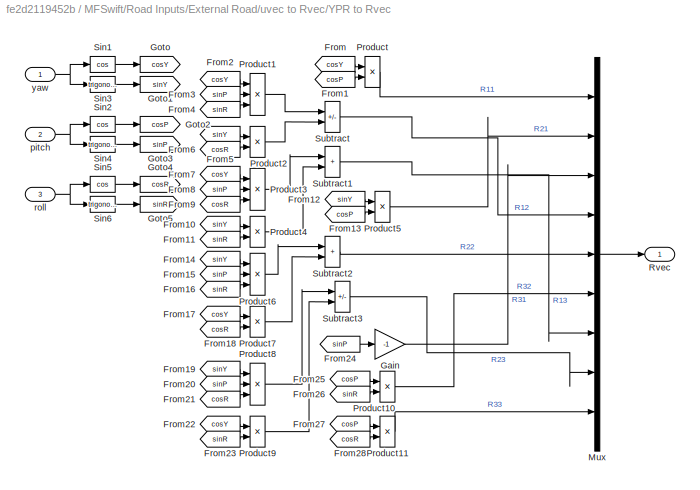
BLOCK [SubSystem] MFSwift/Road Inputs/External Road/uvec to Rvec/YPR to Rvec
  Ports = [3, 1]
  RequestExecContextInheritance = off
BLOCK [From] MFSwift/Road Inputs/External Road/uvec to Rvec/YPR to Rvec/From
  GotoTag = cosY
BLOCK [From] MFSwift/Road Inputs/External Road/uvec to Rvec/YPR to Rvec/From1
  GotoTag = cosP
BLOCK [From] MFSwift/Road Inputs/External Road/uvec to Rvec/YPR to Rvec/From10
  GotoTag = sinY
BLOCK [From] MFSwift/Road Inputs/External Road/uvec to Rvec/YPR to Rvec/From11
  GotoTag = sinR
BLOCK [From] MFSwift/Road Inputs/External Road/uvec to Rvec/YPR to Rvec/From12
  GotoTag = sinY
BLOCK [From] MFSwift/Road Inputs/External Road/uvec to Rvec/YPR to Rvec/From13
  GotoTag = cosP
BLOCK [From] MFSwift/Road Inputs/External Road/uvec to Rvec/YPR to Rvec/From14
  GotoTag = sinY
BLOCK [From] MFSwift/Road Inputs/External Road/uvec to Rvec/YPR to Rvec/From15
  GotoTag = sinP
BLOCK [From] MFSwift/Road Inputs/External Road/uvec to Rvec/YPR to Rvec/From16
  GotoTag = sinR
BLOCK [From] MFSwift/Road Inputs/External Road/uvec to Rvec/YPR to Rvec/From17
  GotoTag = cosY
BLOCK [From] MFSwift/Road Inputs/External Road/uvec to Rvec/YPR to Rvec/From18
  GotoTag = cosR
BLOCK [From] MFSwift/Road Inputs/External Road/uvec to Rvec/YPR to Rvec/From19
  GotoTag = sinY
BLOCK [From] MFSwift/Road Inputs/External Road/uvec to Rvec/YPR to Rvec/From2
  GotoTag = cosY
BLOCK [From] MFSwift/Road Inputs/External Road/uvec to Rvec/YPR to Rvec/From20
  GotoTag = sinP
BLOCK [From] MFSwift/Road Inputs/External Road/uvec to Rvec/YPR to Rvec/From21
  GotoTag = cosR
BLOCK [From] MFSwift/Road Inputs/External Road/uvec to Rvec/YPR to Rvec/From22
  GotoTag = cosY
BLOCK [From] MFSwift/Road Inputs/External Road/uvec to Rvec/YPR to Rvec/From23
  GotoTag = sinR
BLOCK [From] MFSwift/Road Inputs/External Road/uvec to Rvec/YPR to Rvec/From24
  GotoTag = sinP
BLOCK [From] MFSwift/Road Inputs/External Road/uvec to Rvec/YPR to Rvec/From25
  GotoTag = cosP
BLOCK [From] MFSwift/Road Inputs/External Road/uvec to Rvec/YPR to Rvec/From26
  GotoTag = sinR
BLOCK [From] MFSwift/Road Inputs/External Road/uvec to Rvec/YPR to Rvec/From27
  GotoTag = cosP
BLOCK [From] MFSwift/Road Inputs/External Road/uvec to Rvec/YPR to Rvec/From28
  GotoTag = cosR
BLOCK [From] MFSwift/Road Inputs/External Road/uvec to Rvec/YPR to Rvec/From3
  GotoTag = sinP
BLOCK [From] MFSwift/Road Inputs/External Road/uvec to Rvec/YPR to Rvec/From4
  GotoTag = sinR
BLOCK [From] MFSwift/Road Inputs/External Road/uvec to Rvec/YPR to Rvec/From5
  GotoTag = sinY
BLOCK [From] MFSwift/Road Inputs/External Road/uvec to Rvec/YPR to Rvec/From6
  GotoTag = cosR
BLOCK [From] MFSwift/Road Inputs/External Road/uvec to Rvec/YPR to Rvec/From7
  GotoTag = cosY
BLOCK [From] MFSwift/Road Inputs/External Road/uvec to Rvec/YPR to Rvec/From8
  GotoTag = sinP
BLOCK [From] MFSwift/Road Inputs/External Road/uvec to Rvec/YPR to Rvec/From9
  GotoTag = cosR
BLOCK [Gain] MFSwift/Road Inputs/External Road/uvec to Rvec/YPR to Rvec/Gain
  Gain = -1
BLOCK [Goto] MFSwift/Road Inputs/External Road/uvec to Rvec/YPR to Rvec/Goto
  GotoTag = cosY
BLOCK [Goto] MFSwift/Road Inputs/External Road/uvec to Rvec/YPR to Rvec/Goto1
  GotoTag = sinY
BLOCK [Goto] MFSwift/Road Inputs/External Road/uvec to Rvec/YPR to Rvec/Goto2
  GotoTag = cosP
BLOCK [Goto] MFSwift/Road Inputs/External Road/uvec to Rvec/YPR to Rvec/Goto3
  GotoTag = sinP
BLOCK [Goto] MFSwift/Road Inputs/External Road/uvec to Rvec/YPR to Rvec/Goto4
  GotoTag = cosR
BLOCK [Goto] MFSwift/Road Inputs/External Road/uvec to Rvec/YPR to Rvec/Goto5
  GotoTag = sinR
BLOCK [Mux] MFSwift/Road Inputs/External Road/uvec to Rvec/YPR to Rvec/Mux
  DisplayOption = bar
  Inputs = 9
  Ports = [9, 1]
BLOCK [Product] MFSwift/Road Inputs/External Road/uvec to Rvec/YPR to Rvec/Product
  Ports = [2, 1]
BLOCK [Product] MFSwift/Road Inputs/External Road/uvec to Rvec/YPR to Rvec/Product1
  Inputs = 3
  Ports = [3, 1]
BLOCK [Product] MFSwift/Road Inputs/External Road/uvec to Rvec/YPR to Rvec/Product10
  Ports = [2, 1]
BLOCK [Product] MFSwift/Road Inputs/External Road/uvec to Rvec/YPR to Rvec/Product11
  Ports = [2, 1]
BLOCK [Product] MFSwift/Road Inputs/External Road/uvec to Rvec/YPR to Rvec/Product2
  Ports = [2, 1]
BLOCK [Product] MFSwift/Road Inputs/External Road/uvec to Rvec/YPR to Rvec/Product3
  Inputs = 3
  Ports = [3, 1]
BLOCK [Product] MFSwift/Road Inputs/External Road/uvec to Rvec/YPR to Rvec/Product4
  Ports = [2, 1]
BLOCK [Product] MFSwift/Road Inputs/External Road/uvec to Rvec/YPR to Rvec/Product5
  Ports = [2, 1]
BLOCK [Product] MFSwift/Road Inputs/External Road/uvec to Rvec/YPR to Rvec/Product6
  Inputs = 3
  Ports = [3, 1]
BLOCK [Product] MFSwift/Road Inputs/External Road/uvec to Rvec/YPR to Rvec/Product7
  Ports = [2, 1]
BLOCK [Product] MFSwift/Road Inputs/External Road/uvec to Rvec/YPR to Rvec/Product8
  Inputs = 3
  Ports = [3, 1]
BLOCK [Product] MFSwift/Road Inputs/External Road/uvec to Rvec/YPR to Rvec/Product9
  Ports = [2, 1]
BLOCK [Outport] MFSwift/Road Inputs/External Road/uvec to Rvec/YPR to Rvec/Rvec
BLOCK [Trigonometry] MFSwift/Road Inputs/External Road/uvec to Rvec/YPR to Rvec/Sin1
  Operator = cos
  Ports = [1, 1]
BLOCK [Trigonometry] MFSwift/Road Inputs/External Road/uvec to Rvec/YPR to Rvec/Sin2
  Operator = cos
  Ports = [1, 1]
BLOCK [Trigonometry] MFSwift/Road Inputs/External Road/uvec to Rvec/YPR to Rvec/Sin3
  Ports = [1, 1]
BLOCK [Trigonometry] MFSwift/Road Inputs/External Road/uvec to Rvec/YPR to Rvec/Sin4
  Ports = [1, 1]
BLOCK [Trigonometry] MFSwift/Road Inputs/External Road/uvec to Rvec/YPR to Rvec/Sin5
  Operator = cos
  Ports = [1, 1]
BLOCK [Trigonometry] MFSwift/Road Inputs/External Road/uvec to Rvec/YPR to Rvec/Sin6
  Ports = [1, 1]
BLOCK [Sum] MFSwift/Road Inputs/External Road/uvec to Rvec/YPR to Rvec/Subtract
  IconShape = rectangular
  Inputs = +-
  Ports = [2, 1]
BLOCK [Sum] MFSwift/Road Inputs/External Road/uvec to Rvec/YPR to Rvec/Subtract1
  IconShape = rectangular
  Ports = [2, 1]
BLOCK [Sum] MFSwift/Road Inputs/External Road/uvec to Rvec/YPR to Rvec/Subtract2
  IconShape = rectangular
  Ports = [2, 1]
BLOCK [Sum] MFSwift/Road Inputs/External Road/uvec to Rvec/YPR to Rvec/Subtract3
  IconShape = rectangular
  Inputs = +-
  Ports = [2, 1]
BLOCK [Inport] MFSwift/Road Inputs/External Road/uvec to Rvec/YPR to Rvec/pitch
  Port = 2
BLOCK [Inport] MFSwift/Road Inputs/External Road/uvec to Rvec/YPR to Rvec/roll
  Port = 3
BLOCK [Inport] MFSwift/Road Inputs/External Road/uvec to Rvec/YPR to Rvec/yaw
BLOCK [Reference] MFSwift/Road Inputs/Non-moving road  REF=mfswift_simscape_library/Non-moving road
  Ports = [0, 1]
  SourceBlock = mfswift_simscape_library/Non-moving road
BLOCK [Inport] MFSwift/Road Inputs/RdBus
BLOCK [SubSystem] MFSwift/Road Inputs/Test Rig Post
  Ports = [0, 1]
  RequestExecContextInheritance = off
  VariantControl = TestRigPost
BLOCK [Reference] MFSwift/Road Inputs/Test Rig Post/Moving Road  REF=mfswift_simscape_library/Moving Road
  Ports = [1, 1]
  SourceBlock = mfswift_simscape_library/Moving Road
BLOCK [Step] MFSwift/Road Inputs/Test Rig Post/Step road input 2
  After = 0.05
  NameLocation = top
  SampleTime = 0
  Time = 4
BLOCK [Outport] MFSwift/Road Inputs/Test Rig Post/road
  VectorParamsAs1DForOutWhenUnconnected = off
BLOCK [Outport] MFSwift/Road Inputs/road
  VectorParamsAs1DForOutWhenUnconnected = off
BLOCK [Reference] MFSwift/Sensor Wheel Frame  REF=sm_car_lib/Tires/Sensor Wheel Frame  (lib defined in slx_05426f0848b6, slx_5dc2867fb1c9)
  Ports = [0, 3, 0, 0, 0, 1]
  SourceBlock = sm_car_lib/Tires/Sensor Wheel Frame
  SourceType = SubSystem
BLOCK [Terminator] MFSwift/Terminator 4
BLOCK [Reference] MFSwift/Wheel and Tyre  REF=$bdroot/MF-Swift Simscape
  Ports = [1, 2, 0, 0, 0, 1]
  SourceBlock = $bdroot/MF-Swift Simscape
  SourceType = MF-Tyre/MF-Swift Simscape tire
  Tag = STI tyre
ANNOTATION (root): Component of Simscape Vehicle Templates Library <copyright redacted>
ANNOTATION CPI Tire/Sensing Wheel Fixed Frame: Incorrect - needs to be component normal to ground plane
ANNOTATION CPI Tire/Sensing Wheel Fixed Frame/Get uvec Yaw axis: Make Unit Vector
ANNOTATION CPI Tire/Sensing Wheel Fixed Frame/Get uvec Yaw axis: Obtain unit vector along vertical axis within tire plane (wheel yaw axis) (World Z vector [0 0 1]) - (z-component of unit vector along wheel spin axis) normalize ([0 0 1] - ([0 0 1].*uvec spin axis)*uvec spin axis)
ANNOTATION CPI Tire/Sensing Wheel Fixed Frame/Project onto Road Plane: Create unit vector in lateral direction from wheel on ground plane. This computation projects input vector v (along the wheel spin axis) onto the plane normal to the z axis.
ANNOTATION CPI Tire/Sensing Wheel Fixed Frame/Project onto Road Plane: Normalize to create a unit vector
ANNOTATION CPI Tire/Transform to Spin Frame CPI: Transform Force Vector from Fixed to Spinning Wheel Frame
ANNOTATION CPI Tire/Transform to Spin Frame CPI: Transform Moment Vector from Fixed to Spinning Wheel Frame
ANNOTATION CPI Tire/Transform to Spin Frame CPI/Angle Fixed to Spinning/Get uvec Yaw axis: Make Unit Vector
ANNOTATION CPI Tire/Transform to Spin Frame CPI/Angle Fixed to Spinning/Get uvec Yaw axis: Obtain unit vector along vertical axis within tire plane (wheel yaw axis) (World Z vector [0 0 1]) - (z-component of unit vector along wheel spin axis) normalize ([0 0 1] - ([0 0 1].*uvec spin axis)*uvec spin axis)
ANNOTATION CPI Tire/Transform to Spin Frame CPI/Rotate x Axis Force: This computation rotates the 2-D vector [x y]' by the 2 x 2 planar rotation matrix R(theta).
ANNOTATION CPI Tire/Transform to Spin Frame CPI/Rotate x Axis Moment: This computation rotates the 2-D vector [x y]' by the 2 x 2 planar rotation matrix R(theta).
ANNOTATION CPI Tire/Transform to Spin Frame CPI/Rotate y Axis Force: This computation rotates the 2-D vector [x y]' by the 2 x 2 planar rotation matrix R(theta).
ANNOTATION CPI Tire/Transform to Spin Frame CPI/Rotate y Axis Moment: This computation rotates the 2-D vector [x y]' by the 2 x 2 planar rotation matrix R(theta).
ANNOTATION CPI Tire/Vertical Force/Damping Force: Apply damping only when stiffness force >0
ANNOTATION MFSwift/Road Inputs: 1) Only subsystems can be added as variant choices at this level 2) Blocks cannot be connected at this level as connectivity is automatically determined at simulation, based on the active variant
LINE CPI Tire/Bus Selector:1 -> CPI Tire/Mux1:3
LINE CPI Tire/CPI tyre:1 -> CPI Tire/Terminator1:1
LINE CPI Tire/CPI tyre:2 -> CPI Tire/Mux1:1
LINE CPI Tire/CPI tyre:3 -> CPI Tire/Mux1:2
LINE CPI Tire/CPI tyre:4 -> CPI Tire/Mux2:1
LINE CPI Tire/CPI tyre:5 -> CPI Tire/Mux2:2
LINE CPI Tire/CPI tyre:6 -> CPI Tire/Mux2:3
LINE CPI Tire/CPI tyre:7 -> CPI Tire/Bus Selector:1
LINE CPI Tire/Constant:1 -> CPI Tire/CPI tyre:7
LINE CPI Tire/Gain2:1 -> CPI Tire/Vertical Force:4
LINE CPI Tire/Ground2:1 -> CPI Tire/Out Bus Element:1
LINE CPI Tire/Ground:1 -> CPI Tire/Out Bus Element1:1
LINE CPI Tire/In Bus Element:1 -> CPI Tire/Gain2:1
LINE CPI Tire/Mux10:1 -> CPI Tire/Simulink-PS Converter1:1
LINE CPI Tire/Mux11:1 -> CPI Tire/Simulink-PS Converter2:1
LINE CPI Tire/Mux1:1 -> CPI Tire/Transform to Spin Frame CPI:2
LINE CPI Tire/Mux2:1 -> CPI Tire/Transform to Spin Frame CPI:3
NET CPI Tire/PS-Simulink Converter:1 -> CPI Tire/CPI tyre:1, CPI Tire/Out Bus Element3:1
NET CPI Tire/Sensing Wheel Fixed Frame/Ang Velocity Vector/Mux:1 -> CPI Tire/Sensing Wheel Fixed Frame/Ang Velocity Vector/Scope:1, CPI Tire/Sensing Wheel Fixed Frame/Ang Velocity Vector/wxyz:1
LINE CPI Tire/Sensing Wheel Fixed Frame/Ang Velocity Vector/PS-Simulink Converter1:1 -> CPI Tire/Sensing Wheel Fixed Frame/Ang Velocity Vector/Mux:1
LINE CPI Tire/Sensing Wheel Fixed Frame/Ang Velocity Vector/PS-Simulink Converter2:1 -> CPI Tire/Sensing Wheel Fixed Frame/Ang Velocity Vector/Mux:2
LINE CPI Tire/Sensing Wheel Fixed Frame/Ang Velocity Vector/PS-Simulink Converter3:1 -> CPI Tire/Sensing Wheel Fixed Frame/Ang Velocity Vector/Mux:3
LINE CPI Tire/Sensing Wheel Fixed Frame/Ang Velocity Vector:1 -> CPI Tire/Sensing Wheel Fixed Frame/Dot Product2:1
LINE CPI Tire/Sensing Wheel Fixed Frame/Calculate Camber/Demux:1 -> CPI Tire/Sensing Wheel Fixed Frame/Calculate Camber/Mux:1
LINE CPI Tire/Sensing Wheel Fixed Frame/Calculate Camber/Demux:2 -> CPI Tire/Sensing Wheel Fixed Frame/Calculate Camber/Mux:2
LINE CPI Tire/Sensing Wheel Fixed Frame/Calculate Camber/Demux:3 -> CPI Tire/Sensing Wheel Fixed Frame/Calculate Camber/Trigonometric Function1:1
LINE CPI Tire/Sensing Wheel Fixed Frame/Calculate Camber/Mux:1 -> CPI Tire/Sensing Wheel Fixed Frame/Calculate Camber/magnitude:1
LINE CPI Tire/Sensing Wheel Fixed Frame/Calculate Camber/Trigonometric Function1:1 -> CPI Tire/Sensing Wheel Fixed Frame/Calculate Camber/Camber:1
LINE CPI Tire/Sensing Wheel Fixed Frame/Calculate Camber/magnitude:1 -> CPI Tire/Sensing Wheel Fixed Frame/Calculate Camber/Trigonometric Function1:2
LINE CPI Tire/Sensing Wheel Fixed Frame/Calculate Camber/uvec spin axis:1 -> CPI Tire/Sensing Wheel Fixed Frame/Calculate Camber/Demux:1
LINE CPI Tire/Sensing Wheel Fixed Frame/Calculate Camber:1 -> CPI Tire/Sensing Wheel Fixed Frame/Camber:1
LINE CPI Tire/Sensing Wheel Fixed Frame/Dot Product1:1 -> CPI Tire/Sensing Wheel Fixed Frame/vx:1
LINE CPI Tire/Sensing Wheel Fixed Frame/Dot Product2:1 -> CPI Tire/Sensing Wheel Fixed Frame/yaw deriv:1
LINE CPI Tire/Sensing Wheel Fixed Frame/Dot Product:1 -> CPI Tire/Sensing Wheel Fixed Frame/vy:1
LINE CPI Tire/Sensing Wheel Fixed Frame/Get uvec Yaw axis/Add:1 -> CPI Tire/Sensing Wheel Fixed Frame/Get uvec Yaw axis/Mux1:3
LINE CPI Tire/Sensing Wheel Fixed Frame/Get uvec Yaw axis/Constant:1 -> CPI Tire/Sensing Wheel Fixed Frame/Get uvec Yaw axis/Add:2
LINE CPI Tire/Sensing Wheel Fixed Frame/Get uvec Yaw axis/Demux:1 -> CPI Tire/Sensing Wheel Fixed Frame/Get uvec Yaw axis/Mult:1
LINE CPI Tire/Sensing Wheel Fixed Frame/Get uvec Yaw axis/Demux:2 -> CPI Tire/Sensing Wheel Fixed Frame/Get uvec Yaw axis/Mult1:1
NET CPI Tire/Sensing Wheel Fixed Frame/Get uvec Yaw axis/Demux:3 -> CPI Tire/Sensing Wheel Fixed Frame/Get uvec Yaw axis/Gain2:1, CPI Tire/Sensing Wheel Fixed Frame/Get uvec Yaw axis/Mult2:1
LINE CPI Tire/Sensing Wheel Fixed Frame/Get uvec Yaw axis/Divide:1 -> CPI Tire/Sensing Wheel Fixed Frame/Get uvec Yaw axis/u:1
NET CPI Tire/Sensing Wheel Fixed Frame/Get uvec Yaw axis/Gain2:1 -> CPI Tire/Sensing Wheel Fixed Frame/Get uvec Yaw axis/Mult1:2, CPI Tire/Sensing Wheel Fixed Frame/Get uvec Yaw axis/Mult2:2, CPI Tire/Sensing Wheel Fixed Frame/Get uvec Yaw axis/Mult:2
LINE CPI Tire/Sensing Wheel Fixed Frame/Get uvec Yaw axis/Mult1:1 -> CPI Tire/Sensing Wheel Fixed Frame/Get uvec Yaw axis/Mux1:2
LINE CPI Tire/Sensing Wheel Fixed Frame/Get uvec Yaw axis/Mult2:1 -> CPI Tire/Sensing Wheel Fixed Frame/Get uvec Yaw axis/Add:1
LINE CPI Tire/Sensing Wheel Fixed Frame/Get uvec Yaw axis/Mult:1 -> CPI Tire/Sensing Wheel Fixed Frame/Get uvec Yaw axis/Mux1:1
NET CPI Tire/Sensing Wheel Fixed Frame/Get uvec Yaw axis/Mux1:1 -> CPI Tire/Sensing Wheel Fixed Frame/Get uvec Yaw axis/Divide:1, CPI Tire/Sensing Wheel Fixed Frame/Get uvec Yaw axis/magnitude:1
LINE CPI Tire/Sensing Wheel Fixed Frame/Get uvec Yaw axis/magnitude:1 -> CPI Tire/Sensing Wheel Fixed Frame/Get uvec Yaw axis/Divide:2
LINE CPI Tire/Sensing Wheel Fixed Frame/Get uvec Yaw axis/zf:1 -> CPI Tire/Sensing Wheel Fixed Frame/Get uvec Yaw axis/Demux:1
LINE CPI Tire/Sensing Wheel Fixed Frame/Get uvec Yaw axis:1 -> CPI Tire/Sensing Wheel Fixed Frame/Dot Product2:2
LINE CPI Tire/Sensing Wheel Fixed Frame/PS-Simulink Converter1:1 -> CPI Tire/Sensing Wheel Fixed Frame/z:1
LINE CPI Tire/Sensing Wheel Fixed Frame/PS-Simulink Converter2:1 -> CPI Tire/Sensing Wheel Fixed Frame/vz:1
NET CPI Tire/Sensing Wheel Fixed Frame/PS-Simulink Converter6:1 -> CPI Tire/Sensing Wheel Fixed Frame/R:1, CPI Tire/Sensing Wheel Fixed Frame/Select z axis:1
LINE CPI Tire/Sensing Wheel Fixed Frame/Project onto Road Plane/Constant:1 -> CPI Tire/Sensing Wheel Fixed Frame/Project onto Road Plane/Mux1:3
LINE CPI Tire/Sensing Wheel Fixed Frame/Project onto Road Plane/Demux:1 -> CPI Tire/Sensing Wheel Fixed Frame/Project onto Road Plane/Mux1:1
LINE CPI Tire/Sensing Wheel Fixed Frame/Project onto Road Plane/Demux:2 -> CPI Tire/Sensing Wheel Fixed Frame/Project onto Road Plane/Mux1:2
LINE CPI Tire/Sensing Wheel Fixed Frame/Project onto Road Plane/Demux:3 -> CPI Tire/Sensing Wheel Fixed Frame/Project onto Road Plane/Terminator:1
LINE CPI Tire/Sensing Wheel Fixed Frame/Project onto Road Plane/Divide:1 -> CPI Tire/Sensing Wheel Fixed Frame/Project onto Road Plane/v proj:1
NET CPI Tire/Sensing Wheel Fixed Frame/Project onto Road Plane/Mux1:1 -> CPI Tire/Sensing Wheel Fixed Frame/Project onto Road Plane/Divide:1, CPI Tire/Sensing Wheel Fixed Frame/Project onto Road Plane/magnitude:1
LINE CPI Tire/Sensing Wheel Fixed Frame/Project onto Road Plane/magnitude:1 -> CPI Tire/Sensing Wheel Fixed Frame/Project onto Road Plane/Divide:2
LINE CPI Tire/Sensing Wheel Fixed Frame/Project onto Road Plane/v:1 -> CPI Tire/Sensing Wheel Fixed Frame/Project onto Road Plane/Demux:1
NET CPI Tire/Sensing Wheel Fixed Frame/Project onto Road Plane:1 -> CPI Tire/Sensing Wheel Fixed Frame/Dot Product:1, CPI Tire/Sensing Wheel Fixed Frame/Rot -90 deg about Z:1
LINE CPI Tire/Sensing Wheel Fixed Frame/Rot -90 deg about Z/Demux:1 -> CPI Tire/Sensing Wheel Fixed Frame/Rot -90 deg about Z/Gain:1
LINE CPI Tire/Sensing Wheel Fixed Frame/Rot -90 deg about Z/Demux:2 -> CPI Tire/Sensing Wheel Fixed Frame/Rot -90 deg about Z/Mux1:1
LINE CPI Tire/Sensing Wheel Fixed Frame/Rot -90 deg about Z/Demux:3 -> CPI Tire/Sensing Wheel Fixed Frame/Rot -90 deg about Z/Mux1:3
LINE CPI Tire/Sensing Wheel Fixed Frame/Rot -90 deg about Z/Gain:1 -> CPI Tire/Sensing Wheel Fixed Frame/Rot -90 deg about Z/Mux1:2
LINE CPI Tire/Sensing Wheel Fixed Frame/Rot -90 deg about Z/Mux1:1 -> CPI Tire/Sensing Wheel Fixed Frame/Rot -90 deg about Z/v rot -z:1
LINE CPI Tire/Sensing Wheel Fixed Frame/Rot -90 deg about Z/v:1 -> CPI Tire/Sensing Wheel Fixed Frame/Rot -90 deg about Z/Demux:1
LINE CPI Tire/Sensing Wheel Fixed Frame/Rot -90 deg about Z:1 -> CPI Tire/Sensing Wheel Fixed Frame/Dot Product1:2
NET CPI Tire/Sensing Wheel Fixed Frame/Select z axis:1 -> CPI Tire/Sensing Wheel Fixed Frame/Calculate Camber:1, CPI Tire/Sensing Wheel Fixed Frame/Get uvec Yaw axis:1, CPI Tire/Sensing Wheel Fixed Frame/Project onto Road Plane:1, CPI Tire/Sensing Wheel Fixed Frame/Terminator:1
LINE CPI Tire/Sensing Wheel Fixed Frame/Velocity Vector/Mux:1 -> CPI Tire/Sensing Wheel Fixed Frame/Velocity Vector/vxyz:1
LINE CPI Tire/Sensing Wheel Fixed Frame/Velocity Vector/PS-Simulink Converter1:1 -> CPI Tire/Sensing Wheel Fixed Frame/Velocity Vector/Mux:1
LINE CPI Tire/Sensing Wheel Fixed Frame/Velocity Vector/PS-Simulink Converter2:1 -> CPI Tire/Sensing Wheel Fixed Frame/Velocity Vector/Mux:2
LINE CPI Tire/Sensing Wheel Fixed Frame/Velocity Vector/PS-Simulink Converter3:1 -> CPI Tire/Sensing Wheel Fixed Frame/Velocity Vector/Mux:3
NET CPI Tire/Sensing Wheel Fixed Frame/Velocity Vector:1 -> CPI Tire/Sensing Wheel Fixed Frame/Dot Product1:1, CPI Tire/Sensing Wheel Fixed Frame/Dot Product:2
LINE CPI Tire/Sensing Wheel Fixed Frame:1 -> CPI Tire/Transform to Spin Frame CPI:1
LINE CPI Tire/Sensing Wheel Fixed Frame:2 -> CPI Tire/CPI tyre:2
LINE CPI Tire/Sensing Wheel Fixed Frame:3 -> CPI Tire/CPI tyre:3
NET CPI Tire/Sensing Wheel Fixed Frame:4 -> CPI Tire/CPI tyre:4, CPI Tire/Vertical Force:1
LINE CPI Tire/Sensing Wheel Fixed Frame:5 -> CPI Tire/CPI tyre:5
LINE CPI Tire/Sensing Wheel Fixed Frame:6 -> CPI Tire/Vertical Force:2
LINE CPI Tire/Sensing Wheel Fixed Frame:7 -> CPI Tire/Vertical Force:3
LINE CPI Tire/Transform to Spin Frame CPI/Angle Fixed to Spinning/Atan2:1 -> CPI Tire/Transform to Spin Frame CPI/Angle Fixed to Spinning/rotang:1
LINE CPI Tire/Transform to Spin Frame CPI/Angle Fixed to Spinning/Demux1:1 -> CPI Tire/Transform to Spin Frame CPI/Angle Fixed to Spinning/Atan2:2
LINE CPI Tire/Transform to Spin Frame CPI/Angle Fixed to Spinning/Demux1:2 -> CPI Tire/Transform to Spin Frame CPI/Angle Fixed to Spinning/Atan2:1
LINE CPI Tire/Transform to Spin Frame CPI/Angle Fixed to Spinning/Demux1:3 -> CPI Tire/Transform to Spin Frame CPI/Angle Fixed to Spinning/Terminator:1
LINE CPI Tire/Transform to Spin Frame CPI/Angle Fixed to Spinning/Get uvec Yaw axis/Add:1 -> CPI Tire/Transform to Spin Frame CPI/Angle Fixed to Spinning/Get uvec Yaw axis/Mux1:3
LINE CPI Tire/Transform to Spin Frame CPI/Angle Fixed to Spinning/Get uvec Yaw axis/Constant:1 -> CPI Tire/Transform to Spin Frame CPI/Angle Fixed to Spinning/Get uvec Yaw axis/Add:2
LINE CPI Tire/Transform to Spin Frame CPI/Angle Fixed to Spinning/Get uvec Yaw axis/Demux:1 -> CPI Tire/Transform to Spin Frame CPI/Angle Fixed to Spinning/Get uvec Yaw axis/Mult:1
LINE CPI Tire/Transform to Spin Frame CPI/Angle Fixed to Spinning/Get uvec Yaw axis/Demux:2 -> CPI Tire/Transform to Spin Frame CPI/Angle Fixed to Spinning/Get uvec Yaw axis/Mult1:1
NET CPI Tire/Transform to Spin Frame CPI/Angle Fixed to Spinning/Get uvec Yaw axis/Demux:3 -> CPI Tire/Transform to Spin Frame CPI/Angle Fixed to Spinning/Get uvec Yaw axis/Gain2:1, CPI Tire/Transform to Spin Frame CPI/Angle Fixed to Spinning/Get uvec Yaw axis/Mult2:1
LINE CPI Tire/Transform to Spin Frame CPI/Angle Fixed to Spinning/Get uvec Yaw axis/Divide:1 -> CPI Tire/Transform to Spin Frame CPI/Angle Fixed to Spinning/Get uvec Yaw axis/u:1
NET CPI Tire/Transform to Spin Frame CPI/Angle Fixed to Spinning/Get uvec Yaw axis/Gain2:1 -> CPI Tire/Transform to Spin Frame CPI/Angle Fixed to Spinning/Get uvec Yaw axis/Mult1:2, CPI Tire/Transform to Spin Frame CPI/Angle Fixed to Spinning/Get uvec Yaw axis/Mult2:2, CPI Tire/Transform to Spin Frame CPI/Angle Fixed to Spinning/Get uvec Yaw axis/Mult:2
LINE CPI Tire/Transform to Spin Frame CPI/Angle Fixed to Spinning/Get uvec Yaw axis/Mult1:1 -> CPI Tire/Transform to Spin Frame CPI/Angle Fixed to Spinning/Get uvec Yaw axis/Mux1:2
LINE CPI Tire/Transform to Spin Frame CPI/Angle Fixed to Spinning/Get uvec Yaw axis/Mult2:1 -> CPI Tire/Transform to Spin Frame CPI/Angle Fixed to Spinning/Get uvec Yaw axis/Add:1
LINE CPI Tire/Transform to Spin Frame CPI/Angle Fixed to Spinning/Get uvec Yaw axis/Mult:1 -> CPI Tire/Transform to Spin Frame CPI/Angle Fixed to Spinning/Get uvec Yaw axis/Mux1:1
NET CPI Tire/Transform to Spin Frame CPI/Angle Fixed to Spinning/Get uvec Yaw axis/Mux1:1 -> CPI Tire/Transform to Spin Frame CPI/Angle Fixed to Spinning/Get uvec Yaw axis/Divide:1, CPI Tire/Transform to Spin Frame CPI/Angle Fixed to Spinning/Get uvec Yaw axis/magnitude:1
LINE CPI Tire/Transform to Spin Frame CPI/Angle Fixed to Spinning/Get uvec Yaw axis/magnitude:1 -> CPI Tire/Transform to Spin Frame CPI/Angle Fixed to Spinning/Get uvec Yaw axis/Divide:2
LINE CPI Tire/Transform to Spin Frame CPI/Angle Fixed to Spinning/Get uvec Yaw axis/zf:1 -> CPI Tire/Transform to Spin Frame CPI/Angle Fixed to Spinning/Get uvec Yaw axis/Demux:1
LINE CPI Tire/Transform to Spin Frame CPI/Angle Fixed to Spinning/Get uvec Yaw axis:1 -> CPI Tire/Transform to Spin Frame CPI/Angle Fixed to Spinning/Multiply:2
LINE CPI Tire/Transform to Spin Frame CPI/Angle Fixed to Spinning/Multiply:1 -> CPI Tire/Transform to Spin Frame CPI/Angle Fixed to Spinning/Demux1:1
NET CPI Tire/Transform to Spin Frame CPI/Angle Fixed to Spinning/R:1 -> CPI Tire/Transform to Spin Frame CPI/Angle Fixed to Spinning/Select z axis:1, CPI Tire/Transform to Spin Frame CPI/Angle Fixed to Spinning/Transpose:1
LINE CPI Tire/Transform to Spin Frame CPI/Angle Fixed to Spinning/Select z axis:1 -> CPI Tire/Transform to Spin Frame CPI/Angle Fixed to Spinning/Get uvec Yaw axis:1
LINE CPI Tire/Transform to Spin Frame CPI/Angle Fixed to Spinning/Transpose:1 -> CPI Tire/Transform to Spin Frame CPI/Angle Fixed to Spinning/Multiply:1
NET CPI Tire/Transform to Spin Frame CPI/Angle Fixed to Spinning:1 -> CPI Tire/Transform to Spin Frame CPI/Rotate y Axis Force:4, CPI Tire/Transform to Spin Frame CPI/Rotate y Axis Moment:4
LINE CPI Tire/Transform to Spin Frame CPI/Calculate Camber/Demux:1 -> CPI Tire/Transform to Spin Frame CPI/Calculate Camber/Mux:1
LINE CPI Tire/Transform to Spin Frame CPI/Calculate Camber/Demux:2 -> CPI Tire/Transform to Spin Frame CPI/Calculate Camber/Mux:2
LINE CPI Tire/Transform to Spin Frame CPI/Calculate Camber/Demux:3 -> CPI Tire/Transform to Spin Frame CPI/Calculate Camber/Trigonometric Function1:1
LINE CPI Tire/Transform to Spin Frame CPI/Calculate Camber/Mux:1 -> CPI Tire/Transform to Spin Frame CPI/Calculate Camber/magnitude:1
LINE CPI Tire/Transform to Spin Frame CPI/Calculate Camber/Trigonometric Function1:1 -> CPI Tire/Transform to Spin Frame CPI/Calculate Camber/Camber:1
LINE CPI Tire/Transform to Spin Frame CPI/Calculate Camber/magnitude:1 -> CPI Tire/Transform to Spin Frame CPI/Calculate Camber/Trigonometric Function1:2
LINE CPI Tire/Transform to Spin Frame CPI/Calculate Camber/uvec spin axis:1 -> CPI Tire/Transform to Spin Frame CPI/Calculate Camber/Demux:1
LINE CPI Tire/Transform to Spin Frame CPI/Calculate Camber:1 -> CPI Tire/Transform to Spin Frame CPI/Gain:1
LINE CPI Tire/Transform to Spin Frame CPI/Demux1:1 -> CPI Tire/Transform to Spin Frame CPI/Rotate x Axis Moment:1
LINE CPI Tire/Transform to Spin Frame CPI/Demux1:2 -> CPI Tire/Transform to Spin Frame CPI/Rotate x Axis Moment:2
LINE CPI Tire/Transform to Spin Frame CPI/Demux1:3 -> CPI Tire/Transform to Spin Frame CPI/Rotate x Axis Moment:3
LINE CPI Tire/Transform to Spin Frame CPI/Demux:1 -> CPI Tire/Transform to Spin Frame CPI/Rotate x Axis Force:1
LINE CPI Tire/Transform to Spin Frame CPI/Demux:2 -> CPI Tire/Transform to Spin Frame CPI/Rotate x Axis Force:2
LINE CPI Tire/Transform to Spin Frame CPI/Demux:3 -> CPI Tire/Transform to Spin Frame CPI/Rotate x Axis Force:3
LINE CPI Tire/Transform to Spin Frame CPI/Fcontact:1 -> CPI Tire/Transform to Spin Frame CPI/Demux:1
NET CPI Tire/Transform to Spin Frame CPI/Gain:1 -> CPI Tire/Transform to Spin Frame CPI/Rotate x Axis Force:4, CPI Tire/Transform to Spin Frame CPI/Rotate x Axis Moment:4
LINE CPI Tire/Transform to Spin Frame CPI/MContact:1 -> CPI Tire/Transform to Spin Frame CPI/Demux1:1
LINE CPI Tire/Transform to Spin Frame CPI/Product1:1 -> CPI Tire/Transform to Spin Frame CPI/Sum2:1
LINE CPI Tire/Transform to Spin Frame CPI/Product:1 -> CPI Tire/Transform to Spin Frame CPI/Sum:1
NET CPI Tire/Transform to Spin Frame CPI/R:1 -> CPI Tire/Transform to Spin Frame CPI/Angle Fixed to Spinning:1, CPI Tire/Transform to Spin Frame CPI/Select z axis:1
LINE CPI Tire/Transform to Spin Frame CPI/Rotate x Axis Force/Add1:1 -> CPI Tire/Transform to Spin Frame CPI/Rotate x Axis Force/z rot:1
LINE CPI Tire/Transform to Spin Frame CPI/Rotate x Axis Force/Add:1 -> CPI Tire/Transform to Spin Frame CPI/Rotate x Axis Force/y rot:1
LINE CPI Tire/Transform to Spin Frame CPI/Rotate x Axis Force/Mult1:1 -> CPI Tire/Transform to Spin Frame CPI/Rotate x Axis Force/Add1:1
LINE CPI Tire/Transform to Spin Frame CPI/Rotate x Axis Force/Mult2:1 -> CPI Tire/Transform to Spin Frame CPI/Rotate x Axis Force/Add:1
LINE CPI Tire/Transform to Spin Frame CPI/Rotate x Axis Force/Mult3:1 -> CPI Tire/Transform to Spin Frame CPI/Rotate x Axis Force/Add1:2
LINE CPI Tire/Transform to Spin Frame CPI/Rotate x Axis Force/Mult:1 -> CPI Tire/Transform to Spin Frame CPI/Rotate x Axis Force/Add:2
NET CPI Tire/Transform to Spin Frame CPI/Rotate x Axis Force/Trigonometric Function1:1 -> CPI Tire/Transform to Spin Frame CPI/Rotate x Axis Force/Mult2:2, CPI Tire/Transform to Spin Frame CPI/Rotate x Axis Force/Mult3:2
NET CPI Tire/Transform to Spin Frame CPI/Rotate x Axis Force/Trigonometric Function:1 -> CPI Tire/Transform to Spin Frame CPI/Rotate x Axis Force/Mult1:2, CPI Tire/Transform to Spin Frame CPI/Rotate x Axis Force/Mult:2
NET CPI Tire/Transform to Spin Frame CPI/Rotate x Axis Force/theta:1 -> CPI Tire/Transform to Spin Frame CPI/Rotate x Axis Force/Trigonometric Function1:1, CPI Tire/Transform to Spin Frame CPI/Rotate x Axis Force/Trigonometric Function:1, CPI Tire/Transform to Spin Frame CPI/Rotate x Axis Force/th:1
LINE CPI Tire/Transform to Spin Frame CPI/Rotate x Axis Force/x:1 -> CPI Tire/Transform to Spin Frame CPI/Rotate x Axis Force/x rot:1
NET CPI Tire/Transform to Spin Frame CPI/Rotate x Axis Force/y:1 -> CPI Tire/Transform to Spin Frame CPI/Rotate x Axis Force/Mult1:1, CPI Tire/Transform to Spin Frame CPI/Rotate x Axis Force/Mult2:1
NET CPI Tire/Transform to Spin Frame CPI/Rotate x Axis Force/z:1 -> CPI Tire/Transform to Spin Frame CPI/Rotate x Axis Force/Mult3:1, CPI Tire/Transform to Spin Frame CPI/Rotate x Axis Force/Mult:1
NET CPI Tire/Transform to Spin Frame CPI/Rotate x Axis Force:1 -> CPI Tire/Transform to Spin Frame CPI/Product1:2, CPI Tire/Transform to Spin Frame CPI/Rotate y Axis Force:1
NET CPI Tire/Transform to Spin Frame CPI/Rotate x Axis Force:2 -> CPI Tire/Transform to Spin Frame CPI/Product:2, CPI Tire/Transform to Spin Frame CPI/Rotate y Axis Force:2
LINE CPI Tire/Transform to Spin Frame CPI/Rotate x Axis Force:3 -> CPI Tire/Transform to Spin Frame CPI/Rotate y Axis Force:3
LINE CPI Tire/Transform to Spin Frame CPI/Rotate x Axis Force:4 -> CPI Tire/Transform to Spin Frame CPI/Terminator1:1
LINE CPI Tire/Transform to Spin Frame CPI/Rotate x Axis Moment/Add1:1 -> CPI Tire/Transform to Spin Frame CPI/Rotate x Axis Moment/z rot:1
LINE CPI Tire/Transform to Spin Frame CPI/Rotate x Axis Moment/Add:1 -> CPI Tire/Transform to Spin Frame CPI/Rotate x Axis Moment/y rot:1
LINE CPI Tire/Transform to Spin Frame CPI/Rotate x Axis Moment/Mult1:1 -> CPI Tire/Transform to Spin Frame CPI/Rotate x Axis Moment/Add1:1
LINE CPI Tire/Transform to Spin Frame CPI/Rotate x Axis Moment/Mult2:1 -> CPI Tire/Transform to Spin Frame CPI/Rotate x Axis Moment/Add:1
LINE CPI Tire/Transform to Spin Frame CPI/Rotate x Axis Moment/Mult3:1 -> CPI Tire/Transform to Spin Frame CPI/Rotate x Axis Moment/Add1:2
LINE CPI Tire/Transform to Spin Frame CPI/Rotate x Axis Moment/Mult:1 -> CPI Tire/Transform to Spin Frame CPI/Rotate x Axis Moment/Add:2
NET CPI Tire/Transform to Spin Frame CPI/Rotate x Axis Moment/Trigonometric Function1:1 -> CPI Tire/Transform to Spin Frame CPI/Rotate x Axis Moment/Mult2:2, CPI Tire/Transform to Spin Frame CPI/Rotate x Axis Moment/Mult3:2
NET CPI Tire/Transform to Spin Frame CPI/Rotate x Axis Moment/Trigonometric Function:1 -> CPI Tire/Transform to Spin Frame CPI/Rotate x Axis Moment/Mult1:2, CPI Tire/Transform to Spin Frame CPI/Rotate x Axis Moment/Mult:2
NET CPI Tire/Transform to Spin Frame CPI/Rotate x Axis Moment/theta:1 -> CPI Tire/Transform to Spin Frame CPI/Rotate x Axis Moment/Trigonometric Function1:1, CPI Tire/Transform to Spin Frame CPI/Rotate x Axis Moment/Trigonometric Function:1, CPI Tire/Transform to Spin Frame CPI/Rotate x Axis Moment/th:1
LINE CPI Tire/Transform to Spin Frame CPI/Rotate x Axis Moment/x:1 -> CPI Tire/Transform to Spin Frame CPI/Rotate x Axis Moment/x rot:1
NET CPI Tire/Transform to Spin Frame CPI/Rotate x Axis Moment/y:1 -> CPI Tire/Transform to Spin Frame CPI/Rotate x Axis Moment/Mult1:1, CPI Tire/Transform to Spin Frame CPI/Rotate x Axis Moment/Mult2:1
NET CPI Tire/Transform to Spin Frame CPI/Rotate x Axis Moment/z:1 -> CPI Tire/Transform to Spin Frame CPI/Rotate x Axis Moment/Mult3:1, CPI Tire/Transform to Spin Frame CPI/Rotate x Axis Moment/Mult:1
LINE CPI Tire/Transform to Spin Frame CPI/Rotate x Axis Moment:1 -> CPI Tire/Transform to Spin Frame CPI/Sum:2
LINE CPI Tire/Transform to Spin Frame CPI/Rotate x Axis Moment:2 -> CPI Tire/Transform to Spin Frame CPI/Sum2:2
LINE CPI Tire/Transform to Spin Frame CPI/Rotate x Axis Moment:3 -> CPI Tire/Transform to Spin Frame CPI/Rotate y Axis Moment:3
LINE CPI Tire/Transform to Spin Frame CPI/Rotate x Axis Moment:4 -> CPI Tire/Transform to Spin Frame CPI/Terminator2:1
LINE CPI Tire/Transform to Spin Frame CPI/Rotate y Axis Force/Add1:1 -> CPI Tire/Transform to Spin Frame CPI/Rotate y Axis Force/z rot:1
LINE CPI Tire/Transform to Spin Frame CPI/Rotate y Axis Force/Add:1 -> CPI Tire/Transform to Spin Frame CPI/Rotate y Axis Force/x rot:1
LINE CPI Tire/Transform to Spin Frame CPI/Rotate y Axis Force/Mult1:1 -> CPI Tire/Transform to Spin Frame CPI/Rotate y Axis Force/Add1:1
LINE CPI Tire/Transform to Spin Frame CPI/Rotate y Axis Force/Mult2:1 -> CPI Tire/Transform to Spin Frame CPI/Rotate y Axis Force/Add:1
LINE CPI Tire/Transform to Spin Frame CPI/Rotate y Axis Force/Mult3:1 -> CPI Tire/Transform to Spin Frame CPI/Rotate y Axis Force/Add1:2
LINE CPI Tire/Transform to Spin Frame CPI/Rotate y Axis Force/Mult:1 -> CPI Tire/Transform to Spin Frame CPI/Rotate y Axis Force/Add:2
NET CPI Tire/Transform to Spin Frame CPI/Rotate y Axis Force/Trigonometric Function1:1 -> CPI Tire/Transform to Spin Frame CPI/Rotate y Axis Force/Mult2:2, CPI Tire/Transform to Spin Frame CPI/Rotate y Axis Force/Mult3:2
NET CPI Tire/Transform to Spin Frame CPI/Rotate y Axis Force/Trigonometric Function:1 -> CPI Tire/Transform to Spin Frame CPI/Rotate y Axis Force/Mult1:2, CPI Tire/Transform to Spin Frame CPI/Rotate y Axis Force/Mult:2
NET CPI Tire/Transform to Spin Frame CPI/Rotate y Axis Force/theta:1 -> CPI Tire/Transform to Spin Frame CPI/Rotate y Axis Force/Trigonometric Function1:1, CPI Tire/Transform to Spin Frame CPI/Rotate y Axis Force/Trigonometric Function:1, CPI Tire/Transform to Spin Frame CPI/Rotate y Axis Force/th:1
NET CPI Tire/Transform to Spin Frame CPI/Rotate y Axis Force/x:1 -> CPI Tire/Transform to Spin Frame CPI/Rotate y Axis Force/Mult1:1, CPI Tire/Transform to Spin Frame CPI/Rotate y Axis Force/Mult2:1
LINE CPI Tire/Transform to Spin Frame CPI/Rotate y Axis Force/y:1 -> CPI Tire/Transform to Spin Frame CPI/Rotate y Axis Force/y rot:1
NET CPI Tire/Transform to Spin Frame CPI/Rotate y Axis Force/z:1 -> CPI Tire/Transform to Spin Frame CPI/Rotate y Axis Force/Mult3:1, CPI Tire/Transform to Spin Frame CPI/Rotate y Axis Force/Mult:1
LINE CPI Tire/Transform to Spin Frame CPI/Rotate y Axis Force:1 -> CPI Tire/Transform to Spin Frame CPI/y:1
LINE CPI Tire/Transform to Spin Frame CPI/Rotate y Axis Force:2 -> CPI Tire/Transform to Spin Frame CPI/z:1
LINE CPI Tire/Transform to Spin Frame CPI/Rotate y Axis Force:3 -> CPI Tire/Transform to Spin Frame CPI/x:1
LINE CPI Tire/Transform to Spin Frame CPI/Rotate y Axis Force:4 -> CPI Tire/Transform to Spin Frame CPI/Terminator:1
LINE CPI Tire/Transform to Spin Frame CPI/Rotate y Axis Moment/Add1:1 -> CPI Tire/Transform to Spin Frame CPI/Rotate y Axis Moment/z rot:1
LINE CPI Tire/Transform to Spin Frame CPI/Rotate y Axis Moment/Add:1 -> CPI Tire/Transform to Spin Frame CPI/Rotate y Axis Moment/x rot:1
LINE CPI Tire/Transform to Spin Frame CPI/Rotate y Axis Moment/Mult1:1 -> CPI Tire/Transform to Spin Frame CPI/Rotate y Axis Moment/Add1:1
LINE CPI Tire/Transform to Spin Frame CPI/Rotate y Axis Moment/Mult2:1 -> CPI Tire/Transform to Spin Frame CPI/Rotate y Axis Moment/Add:1
LINE CPI Tire/Transform to Spin Frame CPI/Rotate y Axis Moment/Mult3:1 -> CPI Tire/Transform to Spin Frame CPI/Rotate y Axis Moment/Add1:2
LINE CPI Tire/Transform to Spin Frame CPI/Rotate y Axis Moment/Mult:1 -> CPI Tire/Transform to Spin Frame CPI/Rotate y Axis Moment/Add:2
NET CPI Tire/Transform to Spin Frame CPI/Rotate y Axis Moment/Trigonometric Function1:1 -> CPI Tire/Transform to Spin Frame CPI/Rotate y Axis Moment/Mult2:2, CPI Tire/Transform to Spin Frame CPI/Rotate y Axis Moment/Mult3:2
NET CPI Tire/Transform to Spin Frame CPI/Rotate y Axis Moment/Trigonometric Function:1 -> CPI Tire/Transform to Spin Frame CPI/Rotate y Axis Moment/Mult1:2, CPI Tire/Transform to Spin Frame CPI/Rotate y Axis Moment/Mult:2
NET CPI Tire/Transform to Spin Frame CPI/Rotate y Axis Moment/theta:1 -> CPI Tire/Transform to Spin Frame CPI/Rotate y Axis Moment/Trigonometric Function1:1, CPI Tire/Transform to Spin Frame CPI/Rotate y Axis Moment/Trigonometric Function:1, CPI Tire/Transform to Spin Frame CPI/Rotate y Axis Moment/th:1
NET CPI Tire/Transform to Spin Frame CPI/Rotate y Axis Moment/x:1 -> CPI Tire/Transform to Spin Frame CPI/Rotate y Axis Moment/Mult1:1, CPI Tire/Transform to Spin Frame CPI/Rotate y Axis Moment/Mult2:1
LINE CPI Tire/Transform to Spin Frame CPI/Rotate y Axis Moment/y:1 -> CPI Tire/Transform to Spin Frame CPI/Rotate y Axis Moment/y rot:1
NET CPI Tire/Transform to Spin Frame CPI/Rotate y Axis Moment/z:1 -> CPI Tire/Transform to Spin Frame CPI/Rotate y Axis Moment/Mult3:1, CPI Tire/Transform to Spin Frame CPI/Rotate y Axis Moment/Mult:1
LINE CPI Tire/Transform to Spin Frame CPI/Rotate y Axis Moment:1 -> CPI Tire/Transform to Spin Frame CPI/My:1
LINE CPI Tire/Transform to Spin Frame CPI/Rotate y Axis Moment:2 -> CPI Tire/Transform to Spin Frame CPI/Mz:1
LINE CPI Tire/Transform to Spin Frame CPI/Rotate y Axis Moment:3 -> CPI Tire/Transform to Spin Frame CPI/Mx:1
LINE CPI Tire/Transform to Spin Frame CPI/Rotate y Axis Moment:4 -> CPI Tire/Transform to Spin Frame CPI/Terminator3:1
LINE CPI Tire/Transform to Spin Frame CPI/Select z axis:1 -> CPI Tire/Transform to Spin Frame CPI/Calculate Camber:1
LINE CPI Tire/Transform to Spin Frame CPI/Sum2:1 -> CPI Tire/Transform to Spin Frame CPI/Rotate y Axis Moment:2
LINE CPI Tire/Transform to Spin Frame CPI/Sum:1 -> CPI Tire/Transform to Spin Frame CPI/Rotate y Axis Moment:1
NET CPI Tire/Transform to Spin Frame CPI/radius:1 -> CPI Tire/Transform to Spin Frame CPI/Product1:1, CPI Tire/Transform to Spin Frame CPI/Product:1
LINE CPI Tire/Transform to Spin Frame CPI:1 -> CPI Tire/Mux10:1
LINE CPI Tire/Transform to Spin Frame CPI:2 -> CPI Tire/Mux10:2
LINE CPI Tire/Transform to Spin Frame CPI:3 -> CPI Tire/Mux10:3
LINE CPI Tire/Transform to Spin Frame CPI:4 -> CPI Tire/Mux11:1
LINE CPI Tire/Transform to Spin Frame CPI:5 -> CPI Tire/Mux11:2
LINE CPI Tire/Transform to Spin Frame CPI:6 -> CPI Tire/Mux11:3
LINE CPI Tire/Vertical Force/Constant1:1 -> CPI Tire/Vertical Force/Product:1
LINE CPI Tire/Vertical Force/Cos:1 -> CPI Tire/Vertical Force/Product:2
LINE CPI Tire/Vertical Force/Damping Force/Constant1:1 -> CPI Tire/Vertical Force/Damping Force/Product:2
LINE CPI Tire/Vertical Force/Damping Force/Constant:1 -> CPI Tire/Vertical Force/Damping Force/Switch:3
LINE CPI Tire/Vertical Force/Damping Force/Fz k:1 -> CPI Tire/Vertical Force/Damping Force/Switch:2
LINE CPI Tire/Vertical Force/Damping Force/Product:1 -> CPI Tire/Vertical Force/Damping Force/Switch:1
LINE CPI Tire/Vertical Force/Damping Force/Switch:1 -> CPI Tire/Vertical Force/Damping Force/Fz d:1
LINE CPI Tire/Vertical Force/Damping Force/vz:1 -> CPI Tire/Vertical Force/Damping Force/Product:1
LINE CPI Tire/Vertical Force/Damping Force:1 -> CPI Tire/Vertical Force/Sum1:2
LINE CPI Tire/Vertical Force/Product:1 -> CPI Tire/Vertical Force/Subtract:2
LINE CPI Tire/Vertical Force/Subtract:1 -> CPI Tire/Vertical Force/Sum:1
LINE CPI Tire/Vertical Force/Sum1:1 -> CPI Tire/Vertical Force/Fvert:1
LINE CPI Tire/Vertical Force/Sum:1 -> CPI Tire/Vertical Force/Tire Vertical Stiffness:1
NET CPI Tire/Vertical Force/Tire Vertical Stiffness:1 -> CPI Tire/Vertical Force/Damping Force:1, CPI Tire/Vertical Force/Sum1:1
LINE CPI Tire/Vertical Force/camber:1 -> CPI Tire/Vertical Force/Cos:1
LINE CPI Tire/Vertical Force/gz:1 -> CPI Tire/Vertical Force/Sum:2
LINE CPI Tire/Vertical Force/h:1 -> CPI Tire/Vertical Force/Subtract:1
LINE CPI Tire/Vertical Force/vz:1 -> CPI Tire/Vertical Force/Damping Force:2
LINE CPI Tire/Vertical Force:1 -> CPI Tire/CPI tyre:6
PNET net1: CPI Tire/B:RConn1 -- CPI Tire/C:RConn1 -- CPI Tire/External Force and Torque:RConn1 -- CPI Tire/Sensing Wheel Fixed Frame:LConn1 -- CPI Tire/Tire and Force:LConn1 -- CPI Tire/Transform Sensor:RConn1
PLINE CPI Tire/External Force and Torque:LConn1 -- CPI Tire/Simulink-PS Converter1:RConn1
PLINE CPI Tire/External Force and Torque:LConn2 -- CPI Tire/Simulink-PS Converter2:RConn1
PLINE CPI Tire/PS-Simulink Converter:LConn1 -- CPI Tire/Transform Sensor:RConn2
PLINE CPI Tire/Sensing Wheel Fixed Frame/Ang Velocity Vector/PS-Simulink Converter1:LConn1 -- CPI Tire/Sensing Wheel Fixed Frame/Ang Velocity Vector/wx:RConn1
PLINE CPI Tire/Sensing Wheel Fixed Frame/Ang Velocity Vector/PS-Simulink Converter2:LConn1 -- CPI Tire/Sensing Wheel Fixed Frame/Ang Velocity Vector/wy:RConn1
PLINE CPI Tire/Sensing Wheel Fixed Frame/Ang Velocity Vector/PS-Simulink Converter3:LConn1 -- CPI Tire/Sensing Wheel Fixed Frame/Ang Velocity Vector/wz:RConn1
PLINE CPI Tire/Sensing Wheel Fixed Frame/Ang Velocity Vector:LConn1 -- CPI Tire/Sensing Wheel Fixed Frame/Transform Sensor Base:RConn3
PLINE CPI Tire/Sensing Wheel Fixed Frame/Ang Velocity Vector:LConn2 -- CPI Tire/Sensing Wheel Fixed Frame/Transform Sensor Base:RConn4
PLINE CPI Tire/Sensing Wheel Fixed Frame/Ang Velocity Vector:LConn3 -- CPI Tire/Sensing Wheel Fixed Frame/Transform Sensor Base:RConn5
PLINE CPI Tire/Sensing Wheel Fixed Frame/PS-Simulink Converter1:LConn1 -- CPI Tire/Sensing Wheel Fixed Frame/Transform Sensor Base:RConn6
PNET net2: CPI Tire/Sensing Wheel Fixed Frame/PS-Simulink Converter2:LConn1 -- CPI Tire/Sensing Wheel Fixed Frame/Transform Sensor Base:RConn9 -- CPI Tire/Sensing Wheel Fixed Frame/Velocity Vector:LConn3
PLINE CPI Tire/Sensing Wheel Fixed Frame/PS-Simulink Converter6:LConn1 -- CPI Tire/Sensing Wheel Fixed Frame/Transform Sensor Base:RConn2
PLINE CPI Tire/Sensing Wheel Fixed Frame/Transform Sensor Base:LConn1 -- CPI Tire/Sensing Wheel Fixed Frame/World Frame:RConn1
PLINE CPI Tire/Sensing Wheel Fixed Frame/Transform Sensor Base:RConn1 -- CPI Tire/Sensing Wheel Fixed Frame/Whl:RConn1
PLINE CPI Tire/Sensing Wheel Fixed Frame/Transform Sensor Base:RConn7 -- CPI Tire/Sensing Wheel Fixed Frame/Velocity Vector:LConn1
PLINE CPI Tire/Sensing Wheel Fixed Frame/Transform Sensor Base:RConn8 -- CPI Tire/Sensing Wheel Fixed Frame/Velocity Vector:LConn2
PLINE CPI Tire/Sensing Wheel Fixed Frame/Velocity Vector/PS-Simulink Converter1:LConn1 -- CPI Tire/Sensing Wheel Fixed Frame/Velocity Vector/vx:RConn1
PLINE CPI Tire/Sensing Wheel Fixed Frame/Velocity Vector/PS-Simulink Converter2:LConn1 -- CPI Tire/Sensing Wheel Fixed Frame/Velocity Vector/vy:RConn1
PLINE CPI Tire/Sensing Wheel Fixed Frame/Velocity Vector/PS-Simulink Converter3:LConn1 -- CPI Tire/Sensing Wheel Fixed Frame/Velocity Vector/vz:RConn1
PLINE CPI Tire/Tire and Force/B:RConn1 -- CPI Tire/Tire and Force/Transform Spin Axis:RConn1
PNET net3: CPI Tire/Tire and Force/Inertia:RConn1 -- CPI Tire/Tire and Force/Rim:RConn1 -- CPI Tire/Tire and Force/Tire:RConn1 -- CPI Tire/Tire and Force/Transform Geometry:RConn1
PLINE CPI Tire/Tire and Force/Transform Geometry:LConn1 -- CPI Tire/Tire and Force/Transform Spin Axis:LConn1
PLINE CPI Tire/Transform Sensor:LConn1 -- CPI Tire/World Frame:RConn1
note: NET lines group one-source signal fan-out (src -> all destinations, sorted); 1:1 wires keep LINE; PNET lines group multi-terminal physical nets as a canonical sorted terminal list (undirected conserving connections); 2-terminal nets keep the pairwise PLINE form
